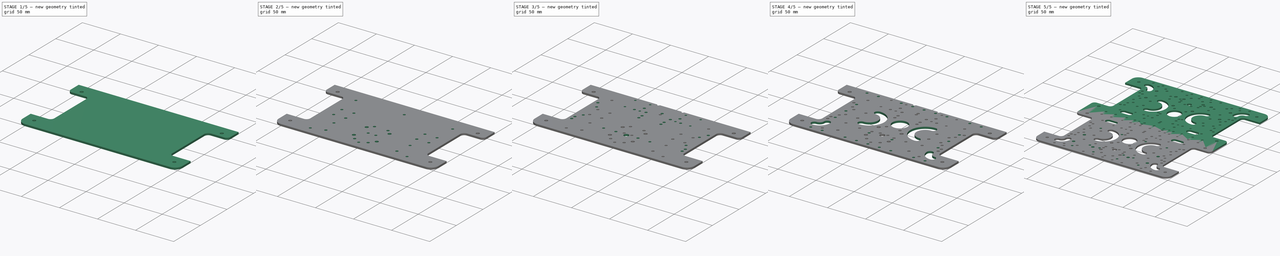
[diagram: build sequence overview — one tinted view per stage of 5, left to right]
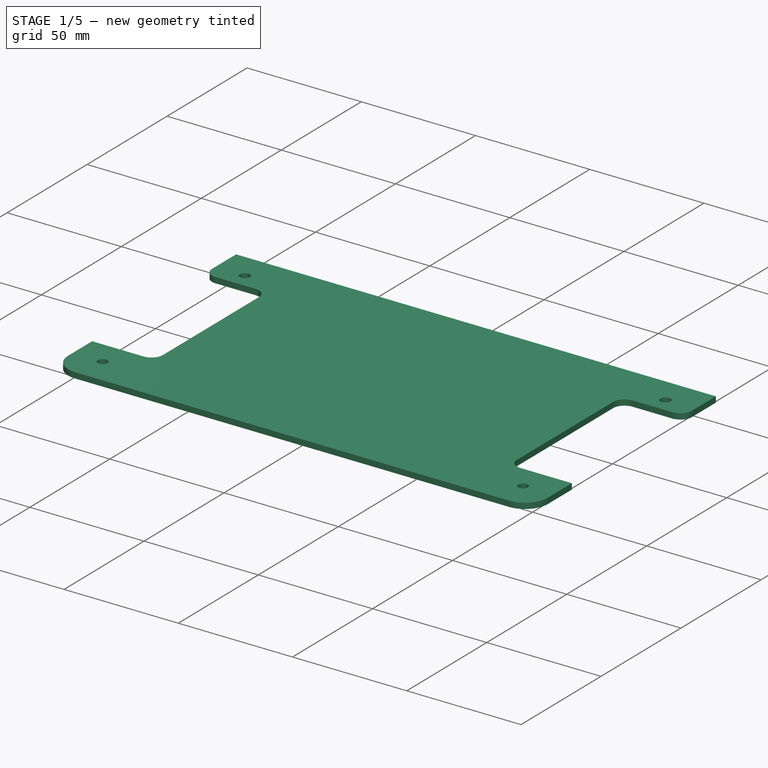
[diagram: stage 1 of 5 — iso view after this stage's code; geometry added in this stage tinted green]
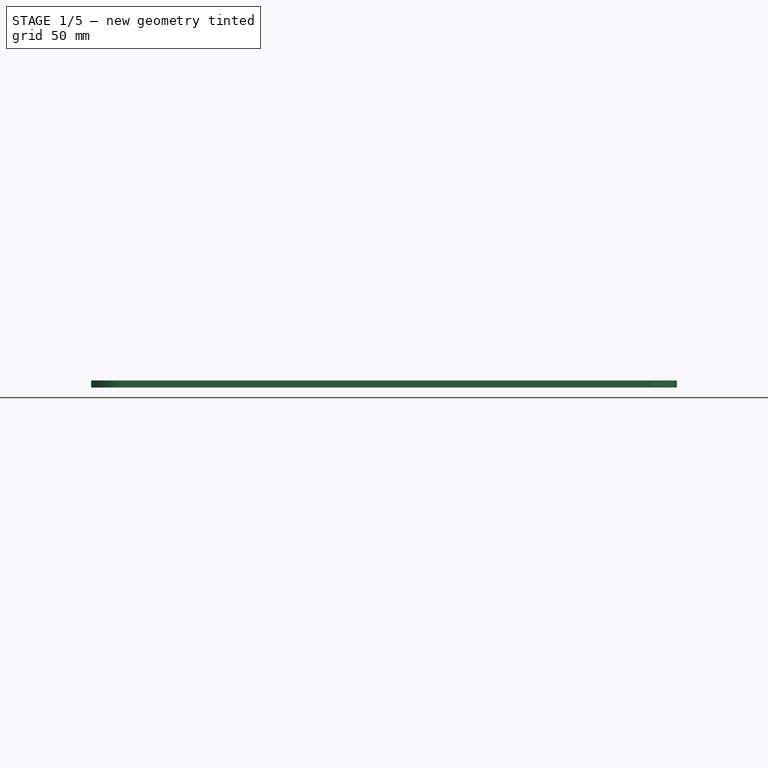
[diagram: stage 1 of 5 — front view after this stage's code; geometry added in this stage tinted green]
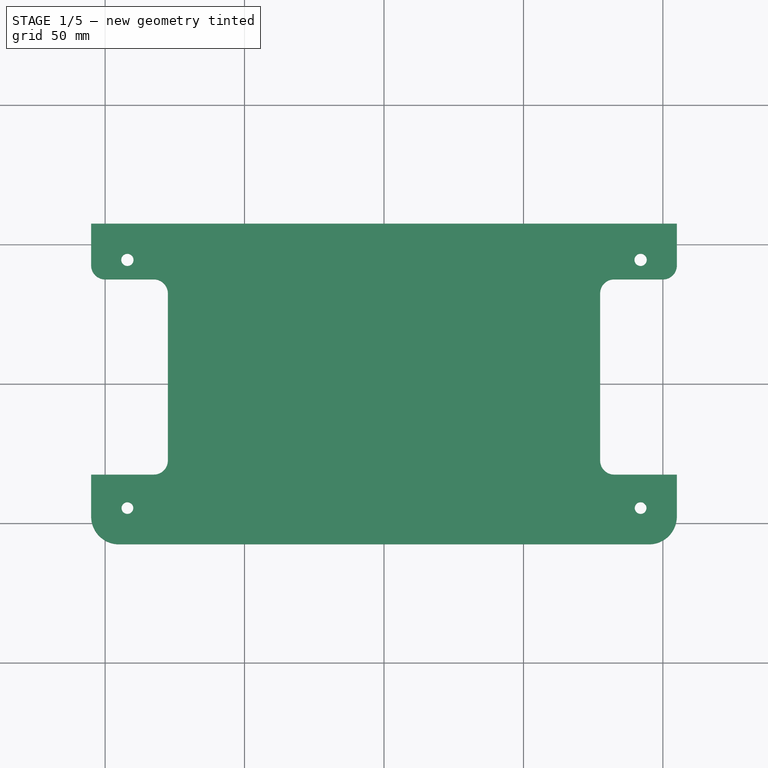
[diagram: stage 1 of 5 — top view after this stage's code; geometry added in this stage tinted green]
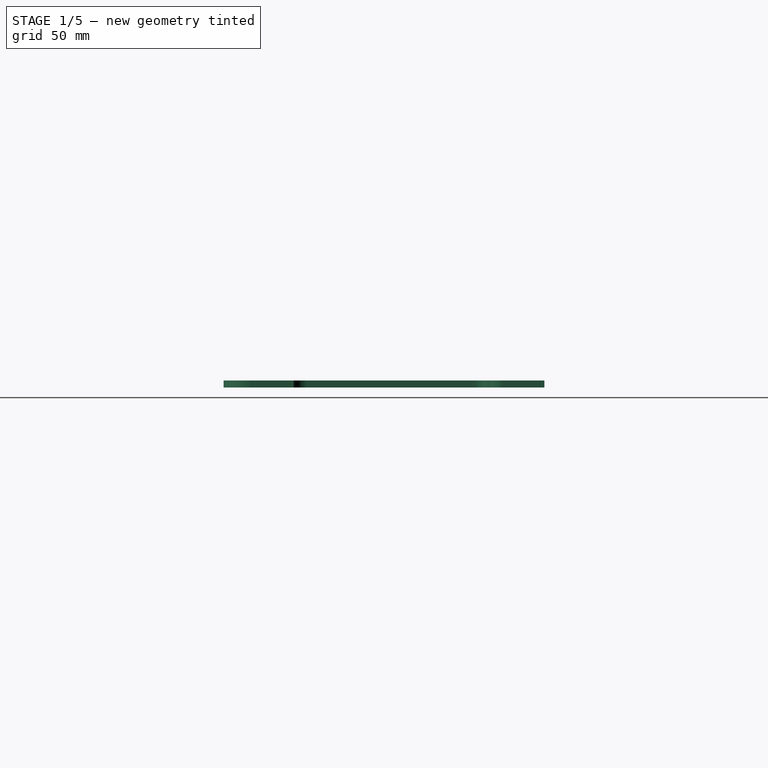
[diagram: stage 1 of 5 — right view after this stage's code; geometry added in this stage tinted green]
FCSTD DOCUMENT  (FreeCAD 1.0R39109 (Git))
Label: com_plate_template
License: All rights reserved
LicenseURL: http://en.wikipedia.org/wiki/All_rights_reserved
objects: Sketcher::SketchObject×22, PartDesign::Pocket×21, PartDesign::Fillet×2, PartDesign::Mirrored×2, PartDesign::Pad×1, PartDesign::Body×1
note: 121 computed .brp shape members not serialized (recipe doc carries the construction recipe); baked Part::Feature solids carry a one-line shape summary decoded from their .brp

FEATURE [Sketcher::SketchObject] Sketch
  ArcFitTolerance = 1e-06
  AttachmentSupport = -> [XY_Plane]
  FullyConstrained = true
  MakeInternals = false
  MapMode = 5
  sketch-geometry (5):
    g0: LineSegment StartX=-105 StartY=57.5 StartZ=0 EndX=-105 EndY=-57.5 EndZ=0
    g1: LineSegment StartX=-105 StartY=-57.5 StartZ=0 EndX=105 EndY=-57.5 EndZ=0
    g2: LineSegment StartX=105 StartY=-57.5 StartZ=0 EndX=105 EndY=57.5 EndZ=0
    g3: LineSegment StartX=105 StartY=57.5 StartZ=0 EndX=-105 EndY=57.5 EndZ=0
    g4: GeomPoint [constr] X=0 Y=0 Z=0
  constraints (12):
    c: Coincident(g0,g1)
    c: Coincident(g1,g2)
    c: Coincident(g2,g3)
    c: Coincident(g3,g0)
    c: Vertical(g0)
    c: Vertical(g2)
    c: Horizontal(g1)
    c: Horizontal(g3)
    c: Symmetric(g2,g0,g4)
    c: Coincident(g4,g-1)
    c: DistanceX(g1,g1) = 210
    c: DistanceY(g2,g2) = 115
FEATURE [PartDesign::Pad] Pad  label="BasePrintPad"
  Direction = (0,0,1)
  Length = 2.5
  Length2 = 10
  Profile = -> Sketch
  ReferenceAxis = -> Sketch [N_Axis]
  Refine = true
  Suppressed = false
  Type = 0
FEATURE [PartDesign::Fillet] Fillet  label="BasePrintFillet"
  Base = -> Pad [Edge2,Edge5]
  BaseFeature = -> Pad
  Radius = 10
  Refine = true
  SupportTransform = false
  Suppressed = false
  UseAllEdges = false
FEATURE [Sketcher::SketchObject] Sketch001
  ArcFitTolerance = 1e-06
  AttachmentSupport = -> [Fillet]
  ExternalGeometry = -> [Fillet]
  FullyConstrained = true
  MakeInternals = false
  MapMode = 5
  Placement = pos=(0,0,2.5) rot=(0,0,1;0rad)
  sketch-geometry (26):
    g0: LineSegment [constr] StartX=85 StartY=-57.5 StartZ=0 EndX=95 EndY=-57.5 EndZ=0
    g1: ArcOfCircle [constr] CenterX=95 CenterY=-47.5 CenterZ=0 NormalX=0 NormalY=0 NormalZ=1 AngleXU=0 Radius=10 StartAngle=4.71239 EndAngle=6.28319
    g2: LineSegment [constr] StartX=105 StartY=-47.5 StartZ=0 EndX=105 EndY=-37.5 EndZ=0
    g3: LineSegment [constr] StartX=105 StartY=-37.5 StartZ=0 EndX=99 EndY=-37.5 EndZ=0
    g4: LineSegment [constr] StartX=99 StartY=-37.5 StartZ=0 EndX=99 EndY=-47.5 EndZ=0
    g5: ArcOfCircle [constr] CenterX=95 CenterY=-47.5 CenterZ=0 NormalX=0 NormalY=0 NormalZ=1 AngleXU=0 Radius=4 StartAngle=4.71239 EndAngle=6.28319
    g6: LineSegment [constr] StartX=95 StartY=-51.5 StartZ=0 EndX=85 EndY=-51.5 EndZ=0
    g7: LineSegment [constr] StartX=85 StartY=-51.5 StartZ=0 EndX=85 EndY=-57.5 EndZ=0
    g8: Circle CenterX=92 CenterY=-44.5 CenterZ=0 NormalX=0 NormalY=0 NormalZ=1 AngleXU=0 Radius=2.1
    g9: LineSegment [constr] StartX=85 StartY=-51.5 StartZ=0 EndX=85 EndY=-41.5 EndZ=0
    g10: ArcOfCircle [constr] CenterX=89 CenterY=-41.5 CenterZ=0 NormalX=0 NormalY=0 NormalZ=1 AngleXU=0 Radius=4 StartAngle=1.5708 EndAngle=3.14159
    g11: LineSegment [constr] StartX=89 StartY=-37.5 StartZ=0 EndX=99 EndY=-37.5 EndZ=0
    g12: LineSegment [constr] StartX=-85 StartY=-57.5 StartZ=0 EndX=-95 EndY=-57.5 EndZ=0
    g13: ArcOfCircle [constr] CenterX=-95 CenterY=-47.5 CenterZ=0 NormalX=0 NormalY=0 NormalZ=1 AngleXU=0 Radius=10 StartAngle=3.14159 EndAngle=4.71239
    g14: LineSegment [constr] StartX=-105 StartY=-47.5 StartZ=0 EndX=-105 EndY=-37.5 EndZ=0
    g15: LineSegment [constr] StartX=-105 StartY=-37.5 StartZ=0 EndX=-99 EndY=-37.5 EndZ=0
    g16: LineSegment [constr] StartX=-99 StartY=-37.5 StartZ=0 EndX=-99 EndY=-47.5 EndZ=0
    g17: ArcOfCircle [constr] CenterX=-95 CenterY=-47.5 CenterZ=0 NormalX=0 NormalY=0 NormalZ=1 AngleXU=0 Radius=4 StartAngle=3.14159 EndAngle=4.71239
    g18: LineSegment [constr] StartX=-95 StartY=-51.5 StartZ=0 EndX=-85 EndY=-51.5 EndZ=0
    g19: LineSegment [constr] StartX=-85 StartY=-51.5 StartZ=0 EndX=-85 EndY=-57.5 EndZ=0
    g20: Circle CenterX=-92 CenterY=-44.5 CenterZ=0 NormalX=0 NormalY=0 NormalZ=1 AngleXU=0 Radius=2.1
    g21: LineSegment [constr] StartX=-85 StartY=-51.5 StartZ=0 EndX=-85 EndY=-41.5 EndZ=0
    g22: LineSegment [constr] StartX=-89 StartY=-37.5 StartZ=0 EndX=-99 EndY=-37.5 EndZ=0
    g23: ArcOfCircle [constr] CenterX=-89 CenterY=-41.5 CenterZ=0 NormalX=0 NormalY=0 NormalZ=1 AngleXU=0 Radius=4 StartAngle=-7.1e-15 EndAngle=1.5708
    g24: Circle CenterX=92 CenterY=44.5 CenterZ=0 NormalX=0 NormalY=0 NormalZ=1 AngleXU=0 Radius=2.2
    g25: Circle CenterX=-92 CenterY=44.5 CenterZ=0 NormalX=0 NormalY=0 NormalZ=1 AngleXU=0 Radius=2.2
  constraints (61):
    c: PointOnObject(g0,g-3)
    c: Tangent(g0,g1) = -1.5708
    c: Coincident(g1,g-5)
    c: Tangent(g1,g2) = -1.5708
    c: Coincident(g2,g3)
    c: Horizontal(g3)
    c: Coincident(g3,g4)
    c: Vertical(g4)
    c: Tangent(g4,g5) = 1.5708
    c: Horizontal(g6)
    c: Coincident(g6,g7)
    c: Coincident(g7,g0)
    c: Tangent(g5,g6) = 1.5708
    c: Vertical(g7)
    c: DistanceX(g3,g3) = 6
    c: Coincident(g-4,g0)
    c: DistanceX(g0,g0) = 10
    c: Equal(g0,g2)
    c: Coincident(g5,g1)
    c: Coincident(g6,g9)
    c: Vertical(g9)
    c: Tangent(g9,g10) = 1.5708
    c: Coincident(g11,g3)
    c: Tangent(g10,g11) = 1.5708
    c: Horizontal(g11)
    c: Equal(g10,g5)
    c: Symmetric(g1,g10,g8)
    c: Radius(g8) = 2.1
    c: Tangent(g12,g13) = 1.5708
    c: Tangent(g13,g14) = 1.5708
    c: Coincident(g14,g15)
    c: Horizontal(g15)
    c: Coincident(g15,g16)
    c: Vertical(g16)
    c: Tangent(g16,g17) = -1.5708
    c: Horizontal(g18)
    c: Coincident(g18,g19)
    c: Coincident(g19,g12)
    c: Tangent(g17,g18) = -1.5708
    c: Vertical(g19)
    c: Equal(g12,g14)
    c: Coincident(g17,g13)
    c: Coincident(g18,g21)
    c: Tangent(g21,g23) = -1.5708
    c: Coincident(g22,g15)
    c: Tangent(g23,g22) = -1.5708
    c: Equal(g23,g17)
    c: Symmetric(g13,g23,g20)
    c: Radius(g20) = 2.1
    c: Symmetric(g12,g0,g-2)
    c: Symmetric(g21,g9,g-2)
    c: Symmetric(g14,g2,g-2)
    c: Equal(g12,g0)
    c: Symmetric(g20,g8,g-2)
    c: Radius(g24) = 2.2
    c: Vertical(g24,g8)
    c: DistanceY(g24,g-6) = 13
    c: Radius(g25) = 2.2
    c: Symmetric(g25,g24,g-2)
    c: DistanceY(g0,g8) = 13
    c: DistanceX(g0,g1) = 10
FEATURE [PartDesign::Pocket] Pocket  label="Spacers10x80ScrewPocket"
  BaseFeature = -> Fillet
  Direction = (0,0,-1)
  Length = 5
  Length2 = 5
  Profile = -> Sketch001
  ReferenceAxis = -> Sketch001 [N_Axis]
  Refine = true
  Suppressed = false
  Type = 1
FEATURE [Sketcher::SketchObject] Sketch002
  ArcFitTolerance = 1e-06
  AttachmentSupport = -> [Pocket]
  ExternalGeometry = -> [Pocket]
  FullyConstrained = true
  MakeInternals = false
  MapMode = 5
  Placement = pos=(0,0,2.5) rot=(0,0,1;0rad)
  sketch-geometry (10):
    g0: LineSegment [constr] StartX=105 StartY=57.5 StartZ=0 EndX=105 EndY=-57.5 EndZ=0
    g1: GeomPoint X=105 Y=-1.2e-15 Z=0
    g2: LineSegment StartX=77.5 StartY=37.5 StartZ=0 EndX=77.5 EndY=-32.5 EndZ=0
    g3: LineSegment StartX=77.5 StartY=-32.5 StartZ=0 EndX=105 EndY=-32.5 EndZ=0
    g4: LineSegment StartX=105 StartY=-32.5 StartZ=0 EndX=105 EndY=37.5 EndZ=0
    g5: LineSegment StartX=105 StartY=37.5 StartZ=0 EndX=77.5 EndY=37.5 EndZ=0
    g6: LineSegment StartX=-77.5 StartY=37.5 StartZ=0 EndX=-77.5 EndY=-32.5 EndZ=0
    g7: LineSegment StartX=-77.5 StartY=-32.5 StartZ=0 EndX=-105 EndY=-32.5 EndZ=0
    g8: LineSegment StartX=-105 StartY=-32.5 StartZ=0 EndX=-105 EndY=37.5 EndZ=0
    g9: LineSegment StartX=-105 StartY=37.5 StartZ=0 EndX=-77.5 EndY=37.5 EndZ=0
  constraints (28):
    c: Coincident(g0,g-3)
    c: Vertical(g0)
    c: Horizontal(g-4,g0)
    c: Symmetric(g0,g0,g1)
    c: Coincident(g2,g3)
    c: Coincident(g3,g4)
    c: Coincident(g4,g5)
    c: Coincident(g5,g2)
    c: Vertical(g2)
    c: Vertical(g4)
    c: Horizontal(g3)
    c: Horizontal(g5)
    c: PointOnObject(g3,g0)
    c: DistanceY(g4,g4) = 70
    c: DistanceX(g5,g5) = 27.5
    c: Coincident(g6,g7)
    c: Coincident(g7,g8)
    c: Coincident(g8,g9)
    c: Coincident(g9,g6)
    c: Vertical(g6)
    c: Vertical(g8)
    c: Horizontal(g7)
    c: Horizontal(g9)
    c: Symmetric(g6,g2,g-2)
    c: Symmetric(g8,g4,g-2)
    c: DistanceY(g-4,g-5) = 13
    c: DistanceY(g0,g3) = 25
    c: DistanceY(g4,g0) = 20
FEATURE [PartDesign::Pocket] Pocket001  label="WheelPocket"
  BaseFeature = -> Pocket
  Direction = (0,0,-1)
  Length = 5
  Length2 = 5
  Profile = -> Sketch002
  ReferenceAxis = -> Sketch002 [N_Axis]
  Refine = true
  Suppressed = false
  Type = 1
FEATURE [PartDesign::Fillet] Fillet001  label="WheelFillet"
  Base = -> Pocket001 [Edge43,Edge42,Edge23,Edge50,Edge41,Edge2]
  BaseFeature = -> Pocket001
  Radius = 5
  Refine = true
  SupportTransform = false
  Suppressed = false
  UseAllEdges = false
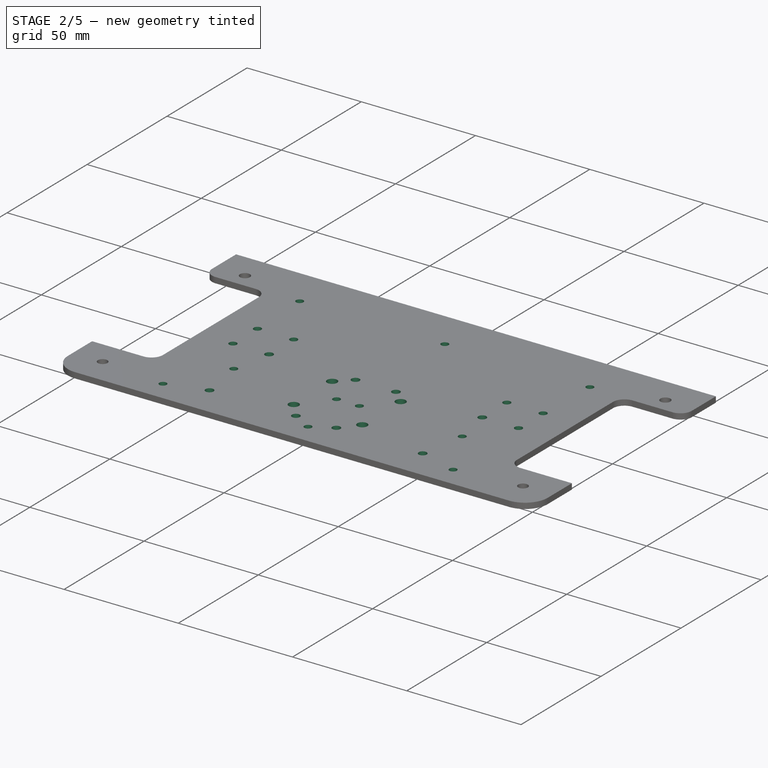
[diagram: stage 2 of 5 — iso view after this stage's code; geometry added in this stage tinted green]
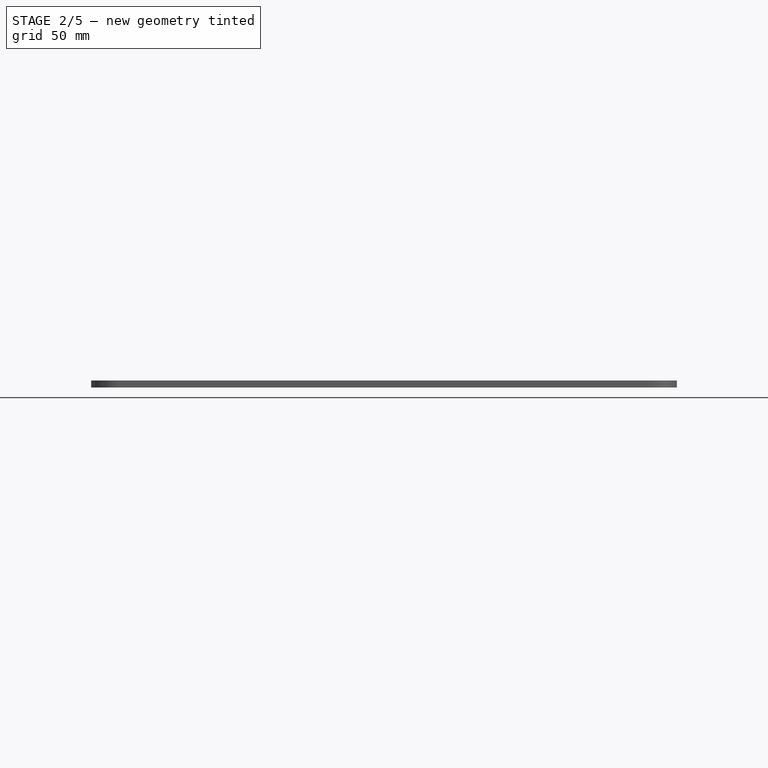
[diagram: stage 2 of 5 — front view after this stage's code; geometry added in this stage tinted green]
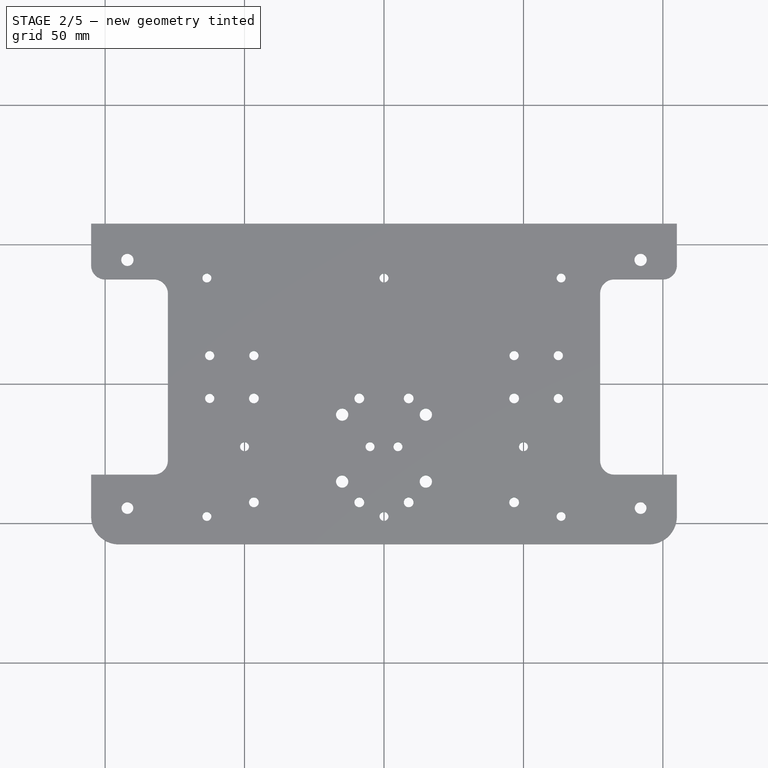
[diagram: stage 2 of 5 — top view after this stage's code; geometry added in this stage tinted green]
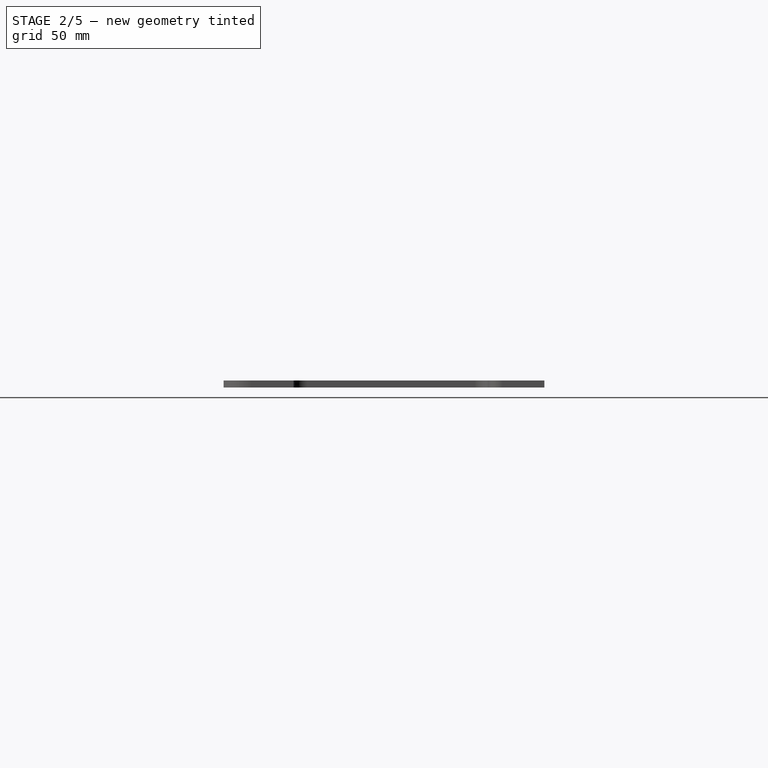
[diagram: stage 2 of 5 — right view after this stage's code; geometry added in this stage tinted green]
FEATURE [Sketcher::SketchObject] Sketch003
  ArcFitTolerance = 1e-06
  AttachmentSupport = -> [Fillet001]
  ExternalGeometry = -> [Fillet001]
  FullyConstrained = true
  MakeInternals = false
  MapMode = 5
  Placement = pos=(0,0,2.5) rot=(0,0,1;0rad)
  expr: Constraints[8] = 61.5 * 2 + 10
  expr: Constraints[9] = 71.5 + 20
  sketch-geometry (10):
    g0: LineSegment [constr] StartX=-66.5 StartY=41 StartZ=0 EndX=-66.5 EndY=-50.5 EndZ=0
    g1: LineSegment [constr] StartX=-66.5 StartY=-50.5 StartZ=0 EndX=66.5 EndY=-50.5 EndZ=0
    g2: LineSegment [constr] StartX=66.5 StartY=-50.5 StartZ=0 EndX=66.5 EndY=41 EndZ=0
    g3: LineSegment [constr] StartX=66.5 StartY=41 StartZ=0 EndX=-66.5 EndY=41 EndZ=0
    g4: Circle CenterX=0 CenterY=38 CenterZ=0 NormalX=0 NormalY=0 NormalZ=1 AngleXU=0 Radius=1.6
    g5: Circle CenterX=63.5 CenterY=38 CenterZ=0 NormalX=0 NormalY=0 NormalZ=1 AngleXU=0 Radius=1.6
    g6: Circle CenterX=63.5 CenterY=-47.5 CenterZ=0 NormalX=0 NormalY=0 NormalZ=1 AngleXU=0 Radius=1.6
    g7: Circle CenterX=0 CenterY=-47.5 CenterZ=0 NormalX=0 NormalY=0 NormalZ=1 AngleXU=0 Radius=1.6
    g8: Circle CenterX=-63.5 CenterY=38 CenterZ=0 NormalX=0 NormalY=0 NormalZ=1 AngleXU=0 Radius=1.6
    g9: Circle CenterX=-63.5 CenterY=-47.5 CenterZ=0 NormalX=0 NormalY=0 NormalZ=1 AngleXU=0 Radius=1.6
  constraints (27):
    c: Coincident(g0,g1)
    c: Coincident(g1,g2)
    c: Coincident(g2,g3)
    c: Coincident(g3,g0)
    c: Vertical(g0)
    c: Vertical(g2)
    c: Horizontal(g1)
    c: Symmetric(g2,g0,g-2)
    c: DistanceX(g3,g3) = 133
    c: DistanceY(g2,g2) = 91.5
    c: PointOnObject(g4,g-2)
    c: PointOnObject(g7,g-2)
    c: Horizontal(g7,g6)
    c: Vertical(g6,g5)
    c: Horizontal(g4,g5)
    c: Equal(g5,g4)
    c: Equal(g4,g7)
    c: Equal(g7,g6)
    c: Radius(g6) = 1.6
    c: DistanceX(g6,g1) = 3
    c: DistanceY(g1,g6) = 3
    c: DistanceY(g5,g2) = 3
    c: Horizontal(g6,g-4)
    c: Radius(g9) = 1.6
    c: Symmetric(g9,g6,g7)
    c: Symmetric(g8,g5,g4)
    c: Equal(g8,g9)
FEATURE [PartDesign::Pocket] Pocket002  label="BatteryScrewPocket"
  BaseFeature = -> Fillet001
  Direction = (0,0,-1)
  Length = 5
  Length2 = 5
  Profile = -> Sketch003
  ReferenceAxis = -> Sketch003 [N_Axis]
  Refine = true
  Suppressed = false
  Type = 1
FEATURE [Sketcher::SketchObject] Sketch004
  ArcFitTolerance = 1e-06
  AttachmentSupport = -> [Pocket002]
  ExternalGeometry = -> [Pocket002]
  FullyConstrained = true
  MakeInternals = false
  MapMode = 5
  Placement = pos=(0,0,2.5) rot=(0,0,1;0rad)
  sketch-geometry (19):
    g0: GeomPoint X=77.5 Y=2.5 Z=0
    g1: LineSegment [constr] StartX=46.651 StartY=10.1745 StartZ=0 EndX=46.651 EndY=-5.1745 EndZ=0
    g2: LineSegment [constr] StartX=46.651 StartY=-5.1745 StartZ=0 EndX=62.5 EndY=-5.1745 EndZ=0
    g3: LineSegment [constr] StartX=62.5 StartY=-5.1745 StartZ=0 EndX=62.5 EndY=10.1745 EndZ=0
    g4: LineSegment [constr] StartX=62.5 StartY=10.1745 StartZ=0 EndX=46.651 EndY=10.1745 EndZ=0
    g5: GeomPoint [constr] X=54.5755 Y=2.5 Z=0
    g6: Circle CenterX=46.651 CenterY=10.1745 CenterZ=0 NormalX=0 NormalY=0 NormalZ=1 AngleXU=0 Radius=1.65
    g7: Circle CenterX=46.651 CenterY=-5.1745 CenterZ=0 NormalX=0 NormalY=0 NormalZ=1 AngleXU=0 Radius=1.65
    g8: Circle CenterX=62.5 CenterY=-5.1745 CenterZ=0 NormalX=0 NormalY=0 NormalZ=1 AngleXU=0 Radius=1.65
    g9: Circle CenterX=62.5 CenterY=10.1745 CenterZ=0 NormalX=0 NormalY=0 NormalZ=1 AngleXU=0 Radius=1.65
    g10: LineSegment [constr] StartX=-46.651 StartY=10.1745 StartZ=0 EndX=-46.651 EndY=-5.1745 EndZ=0
    g11: LineSegment [constr] StartX=-46.651 StartY=-5.1745 StartZ=0 EndX=-62.5 EndY=-5.1745 EndZ=0
    g12: LineSegment [constr] StartX=-62.5 StartY=-5.1745 StartZ=0 EndX=-62.5 EndY=10.1745 EndZ=0
    g13: LineSegment [constr] StartX=-62.5 StartY=10.1745 StartZ=0 EndX=-46.651 EndY=10.1745 EndZ=0
    g14: GeomPoint [constr] X=-54.5755 Y=2.5 Z=0
    g15: Circle CenterX=-46.651 CenterY=10.1745 CenterZ=0 NormalX=0 NormalY=0 NormalZ=1 AngleXU=0 Radius=1.65
    g16: Circle CenterX=-46.651 CenterY=-5.1745 CenterZ=0 NormalX=0 NormalY=0 NormalZ=1 AngleXU=0 Radius=1.65
    g17: Circle CenterX=-62.5 CenterY=-5.1745 CenterZ=0 NormalX=0 NormalY=0 NormalZ=1 AngleXU=0 Radius=1.65
    g18: Circle CenterX=-62.5 CenterY=10.1745 CenterZ=0 NormalX=0 NormalY=0 NormalZ=1 AngleXU=0 Radius=1.65
  constraints (41):
    c: Symmetric(g-3,g-3,g0)
    c: Coincident(g1,g2)
    c: Coincident(g2,g3)
    c: Coincident(g3,g4)
    c: Coincident(g4,g1)
    c: Vertical(g1)
    c: Vertical(g3)
    c: Horizontal(g2)
    c: Horizontal(g4)
    c: Symmetric(g3,g1,g5)
    c: Horizontal(g5,g0)
    c: Coincident(g6,g1)
    c: Coincident(g7,g1)
    c: Coincident(g8,g2)
    c: Coincident(g9,g3)
    c: Radius(g6) = 1.65
    c: Equal(g6,g9)
    c: Equal(g9,g7)
    c: Equal(g7,g8)
    c: DistanceY(g2,g3) = 15.349
    c: DistanceX(g2,g0) = 15
    c: Coincident(g10,g11)
    c: Coincident(g11,g12)
    c: Coincident(g12,g13)
    c: Coincident(g13,g10)
    c: Vertical(g10)
    c: Vertical(g12)
    c: Horizontal(g11)
    c: Horizontal(g13)
    c: Symmetric(g12,g10,g14)
    c: Coincident(g15,g10)
    c: Coincident(g16,g10)
    c: Coincident(g17,g11)
    c: Coincident(g18,g12)
    c: Radius(g15) = 1.65
    c: Equal(g15,g18)
    c: Equal(g18,g16)
    c: Equal(g16,g17)
    c: Symmetric(g10,g1,g-2)
    c: Symmetric(g2,g11,g-2)
    c: DistanceX(g4,g4) = 15.849
FEATURE [PartDesign::Pocket] Pocket003  label="MotorSupportScrewPocket"
  BaseFeature = -> Pocket002
  Direction = (0,0,-1)
  Length = 5
  Length2 = 5
  Profile = -> Sketch004
  ReferenceAxis = -> Sketch004 [N_Axis]
  Refine = true
  Suppressed = false
  Type = 1
FEATURE [Sketcher::SketchObject] Sketch005
  ArcFitTolerance = 1e-06
  AttachmentSupport = -> [Pocket003]
  ExternalGeometry = -> [Pocket003]
  FullyConstrained = true
  MakeInternals = false
  MapMode = 5
  Placement = pos=(0,0,2.5) rot=(0,0,1;0rad)
  sketch-geometry (16):
    g0: LineSegment [constr] StartX=-46.651 StartY=-5.1745 StartZ=0 EndX=-46.651 EndY=-42.4445 EndZ=0
    g1: LineSegment [constr] StartX=-46.651 StartY=-42.4445 StartZ=0 EndX=-8.851 EndY=-42.4445 EndZ=0
    g2: LineSegment [constr] StartX=-8.851 StartY=-42.4445 StartZ=0 EndX=-8.851 EndY=-5.1745 EndZ=0
    g3: LineSegment [constr] StartX=-8.851 StartY=-5.1745 StartZ=0 EndX=-46.651 EndY=-5.1745 EndZ=0
    g4: Circle CenterX=-46.651 CenterY=-5.1745 CenterZ=0 NormalX=0 NormalY=0 NormalZ=1 AngleXU=0 Radius=1.75
    g5: Circle CenterX=-8.851 CenterY=-5.1745 CenterZ=0 NormalX=0 NormalY=0 NormalZ=1 AngleXU=0 Radius=1.75
    g6: Circle CenterX=-46.651 CenterY=-42.4445 CenterZ=0 NormalX=0 NormalY=0 NormalZ=1 AngleXU=0 Radius=1.75
    g7: Circle CenterX=-8.851 CenterY=-42.4445 CenterZ=0 NormalX=0 NormalY=0 NormalZ=1 AngleXU=0 Radius=1.75
    g8: LineSegment [constr] StartX=46.651 StartY=-5.1745 StartZ=0 EndX=46.651 EndY=-42.4445 EndZ=0
    g9: LineSegment [constr] StartX=46.651 StartY=-42.4445 StartZ=0 EndX=8.851 EndY=-42.4445 EndZ=0
    g10: LineSegment [constr] StartX=8.851 StartY=-42.4445 StartZ=0 EndX=8.851 EndY=-5.1745 EndZ=0
    g11: LineSegment [constr] StartX=8.851 StartY=-5.1745 StartZ=0 EndX=46.651 EndY=-5.1745 EndZ=0
    g12: Circle CenterX=46.651 CenterY=-5.1745 CenterZ=0 NormalX=0 NormalY=0 NormalZ=1 AngleXU=0 Radius=1.75
    g13: Circle CenterX=8.851 CenterY=-5.1745 CenterZ=0 NormalX=0 NormalY=0 NormalZ=1 AngleXU=0 Radius=1.75
    g14: Circle CenterX=46.651 CenterY=-42.4445 CenterZ=0 NormalX=0 NormalY=0 NormalZ=1 AngleXU=0 Radius=1.75
    g15: Circle CenterX=8.851 CenterY=-42.4445 CenterZ=0 NormalX=0 NormalY=0 NormalZ=1 AngleXU=0 Radius=1.75
  constraints (37):
    c: Coincident(g0,g1)
    c: Coincident(g1,g2)
    c: Coincident(g2,g3)
    c: Coincident(g3,g0)
    c: Vertical(g0)
    c: Vertical(g2)
    c: Horizontal(g1)
    c: Horizontal(g3)
    c: Coincident(g4,g0)
    c: Coincident(g5,g2)
    c: Coincident(g6,g0)
    c: Coincident(g7,g1)
    c: Equal(g7,g6)
    c: Equal(g6,g4)
    c: Equal(g4,g5)
    c: Radius(g5) = 1.75
    c: DistanceX(g3,g3) = 37.8
    c: DistanceY(g2,g2) = 37.27
    c: Coincident(g0,g-3)
    c: Coincident(g8,g9)
    c: Coincident(g9,g10)
    c: Coincident(g10,g11)
    c: Coincident(g11,g8)
    c: Vertical(g8)
    c: Vertical(g10)
    c: Horizontal(g9)
    c: Horizontal(g11)
    c: Coincident(g12,g8)
    c: Coincident(g13,g10)
    c: Coincident(g14,g8)
    c: Coincident(g15,g9)
    c: Equal(g15,g14)
    c: Equal(g14,g12)
    c: Equal(g12,g13)
    c: Radius(g13) = 1.75
    c: Symmetric(g1,g9,g-2)
    c: Symmetric(g8,g0,g-2)
FEATURE [PartDesign::Pocket] Pocket004  label="L298nScrewPocket"
  BaseFeature = -> Pocket003
  Direction = (0,0,-1)
  Length = 5
  Length2 = 5
  Profile = -> Sketch005
  ReferenceAxis = -> Sketch005 [N_Axis]
  Refine = true
  Suppressed = false
  Type = 1
FEATURE [Sketcher::SketchObject] Sketch006
  ArcFitTolerance = 1e-06
  AttachmentSupport = -> [Pocket004]
  ExternalGeometry = -> [Pocket004]
  FullyConstrained = true
  MakeInternals = false
  MapMode = 5
  Placement = pos=(0,0,2.5) rot=(0,0,1;0rad)
  sketch-geometry (4):
    g0: Circle CenterX=5 CenterY=-22.5 CenterZ=0 NormalX=0 NormalY=0 NormalZ=1 AngleXU=0 Radius=1.6
    g1: Circle CenterX=50 CenterY=-22.5 CenterZ=0 NormalX=0 NormalY=0 NormalZ=1 AngleXU=0 Radius=1.6
    g2: Circle CenterX=-5 CenterY=-22.5 CenterZ=0 NormalX=0 NormalY=0 NormalZ=1 AngleXU=0 Radius=1.6
    g3: Circle CenterX=-50 CenterY=-22.5 CenterZ=0 NormalX=0 NormalY=0 NormalZ=1 AngleXU=0 Radius=1.6
  constraints (10):
    c: Horizontal(g0,g1)
    c: DistanceX(g0,g1) = 45
    c: Radius(g1) = 1.6
    c: Equal(g1,g0)
    c: DistanceX(g-1,g0) = 5
    c: Radius(g3) = 1.6
    c: Equal(g3,g2)
    c: Symmetric(g0,g2,g-2)
    c: Symmetric(g3,g1,g-2)
    c: DistanceY(g-4,g1) = 10
FEATURE [PartDesign::Pocket] Pocket005  label="RegulatorSupportScrewPocket"
  BaseFeature = -> Pocket004
  Direction = (0,0,-1)
  Length = 5
  Length2 = 5
  Profile = -> Sketch006
  ReferenceAxis = -> Sketch006 [N_Axis]
  Refine = true
  Suppressed = false
  Type = 1
FEATURE [Sketcher::SketchObject] Sketch007
  ArcFitTolerance = 1e-06
  AttachmentSupport = -> [Pocket005]
  FullyConstrained = true
  MakeInternals = false
  MapMode = 5
  Placement = pos=(0,0,2.5) rot=(0,0,1;0rad)
  sketch-geometry (4):
    g0: Circle CenterX=-15 CenterY=-11 CenterZ=0 NormalX=0 NormalY=0 NormalZ=1 AngleXU=0 Radius=2.2
    g1: Circle CenterX=15 CenterY=-11 CenterZ=0 NormalX=0 NormalY=0 NormalZ=1 AngleXU=0 Radius=2.2
    g2: Circle CenterX=-15 CenterY=-35 CenterZ=0 NormalX=0 NormalY=0 NormalZ=1 AngleXU=0 Radius=2.2
    g3: Circle CenterX=15 CenterY=-35 CenterZ=0 NormalX=0 NormalY=0 NormalZ=1 AngleXU=0 Radius=2.2
  constraints (10):
    c: DistanceY(g3,g1) = 24
    c: DistanceX(g0,g1) = 30
    c: Symmetric(g0,g1,g-2)
    c: Symmetric(g2,g3,g-2)
    c: Vertical(g2,g0)
    c: Equal(g1,g3)
    c: Equal(g3,g2)
    c: Equal(g2,g0)
    c: Radius(g0) = 2.2
    c: DistanceY(g1,g-1) = 11
FEATURE [PartDesign::Pocket] Pocket006  label="CasterWheelScrewPocket"
  BaseFeature = -> Pocket005
  Direction = (0,0,-1)
  Length = 5
  Length2 = 5
  Profile = -> Sketch007
  ReferenceAxis = -> Sketch007 [N_Axis]
  Refine = true
  Suppressed = false
  Type = 1
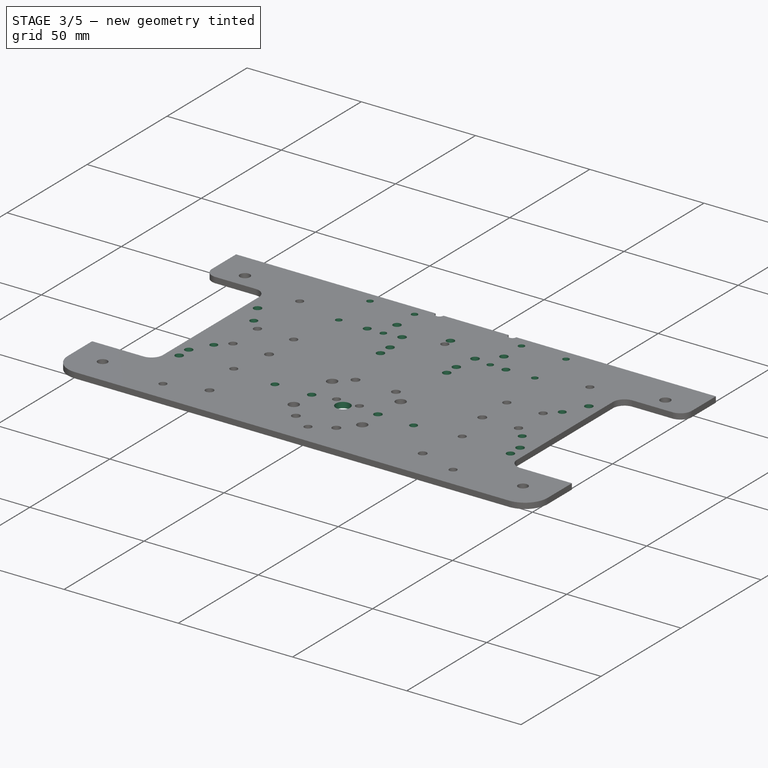
[diagram: stage 3 of 5 — iso view after this stage's code; geometry added in this stage tinted green]
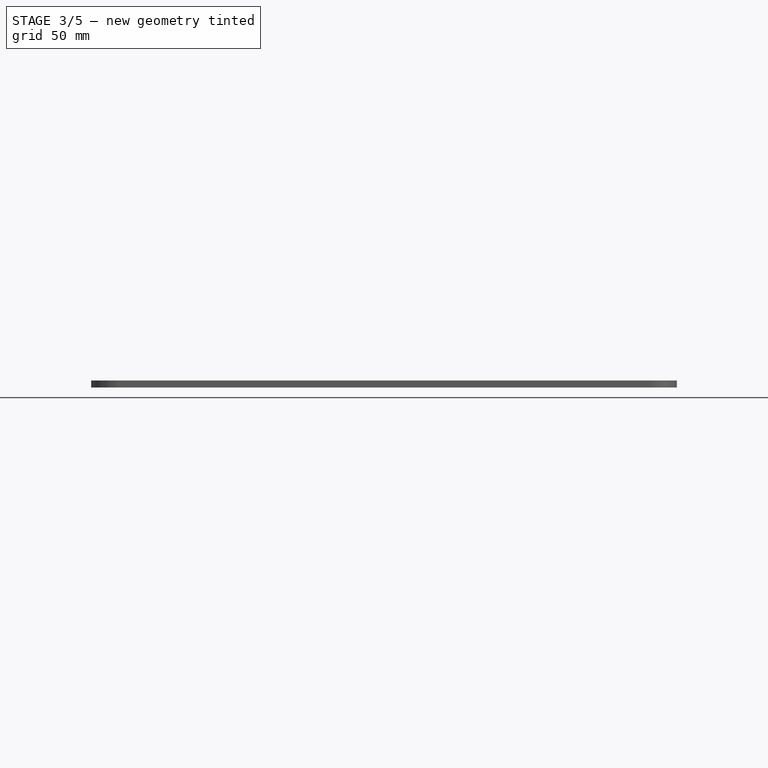
[diagram: stage 3 of 5 — front view after this stage's code; geometry added in this stage tinted green]
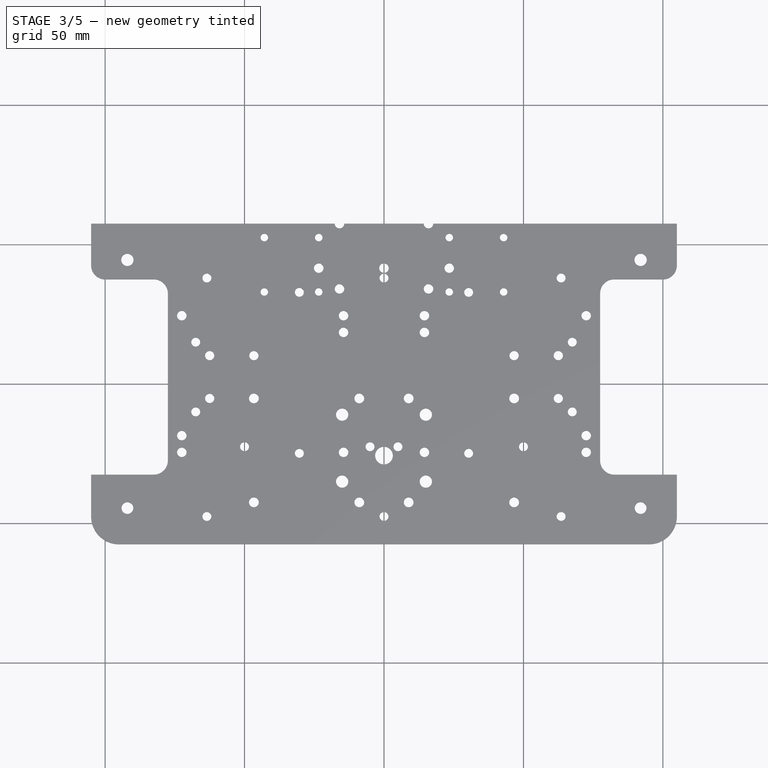
[diagram: stage 3 of 5 — top view after this stage's code; geometry added in this stage tinted green]
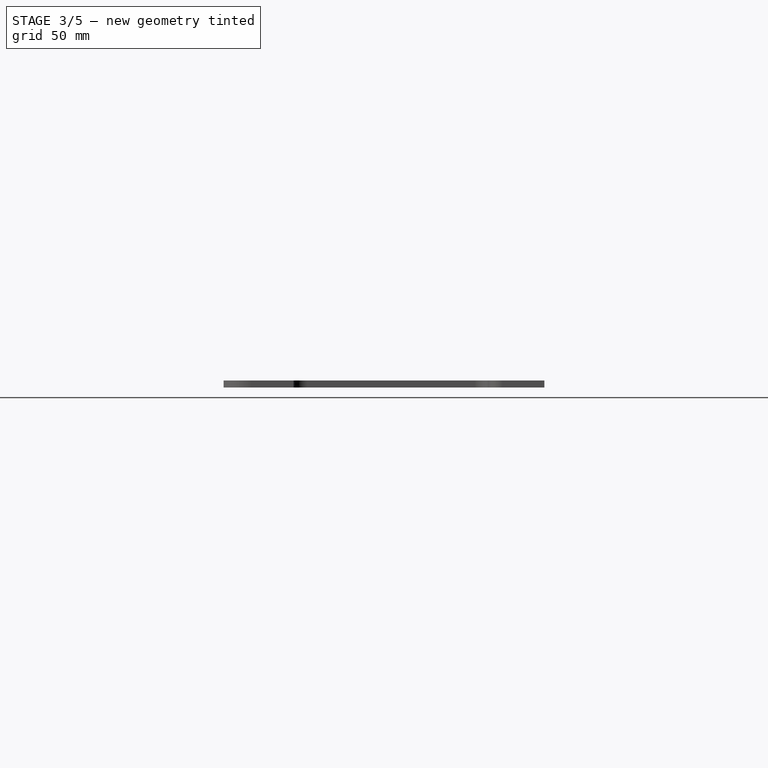
[diagram: stage 3 of 5 — right view after this stage's code; geometry added in this stage tinted green]
FEATURE [Sketcher::SketchObject] Sketch008
  ArcFitTolerance = 1e-06
  AttachmentSupport = -> [Pocket006]
  ExternalGeometry = -> [Pocket006]
  FullyConstrained = true
  MakeInternals = false
  MapMode = 5
  Placement = pos=(0,0,2.5) rot=(0,0,1;0rad)
  sketch-geometry (4):
    g0: Circle CenterX=0 CenterY=-25.675 CenterZ=0 NormalX=0 NormalY=0 NormalZ=1 AngleXU=0 Radius=3.175
    g1: LineSegment [constr] StartX=0 StartY=-42.5 StartZ=0 EndX=3.175 EndY=-42.5 EndZ=0
    g2: GeomPoint [constr] X=3.175 Y=-25.675 Z=0
    g3: GeomPoint [constr] X=0 Y=-22.5 Z=0
  constraints (11):
    c: PointOnObject(g0,g-2)
    c: Radius(g0) = 3.175
    c: Horizontal(g1)
    c: PointOnObject(g2,g0)
    c: Horizontal(g2,g0)
    c: Vertical(g2,g1)
    c: PointOnObject(g3,g0)
    c: PointOnObject(g3,g-2)
    c: DistanceY(g1,g3) = 20
    c: DistanceY(g-3,g1) = 15
    c: PointOnObject(g1,g-2)
FEATURE [PartDesign::Pocket] Pocket007  label="AstraSScrewPocket"
  BaseFeature = -> Pocket006
  Direction = (0,0,-1)
  Length = 5
  Length2 = 5
  Profile = -> Sketch008
  ReferenceAxis = -> Sketch008 [N_Axis]
  Refine = true
  Suppressed = false
  Type = 1
FEATURE [Sketcher::SketchObject] Sketch009
  ArcFitTolerance = 1e-06
  AttachmentSupport = -> [Pocket007]
  ExternalGeometry = -> [Pocket007]
  FullyConstrained = true
  MakeInternals = false
  MapMode = 5
  Placement = pos=(0,0,2.5) rot=(0,0,1;0rad)
  sketch-geometry (16):
    g0: Circle CenterX=0 CenterY=41.54 CenterZ=0 NormalX=0 NormalY=0 NormalZ=1 AngleXU=0 Radius=1.7
    g1: Circle [constr] CenterX=23.4 CenterY=73.46 CenterZ=0 NormalX=0 NormalY=0 NormalZ=1 AngleXU=0 Radius=1.7
    g2: Circle [constr] CenterX=-23.4 CenterY=73.46 CenterZ=0 NormalX=0 NormalY=0 NormalZ=1 AngleXU=0 Radius=1.7
    g3: LineSegment [constr] StartX=0 StartY=41.54 StartZ=0 EndX=0 EndY=73.46 EndZ=0
    g4: GeomPoint X=0 Y=57.5 Z=0
    g5: Circle CenterX=23.4 CenterY=41.54 CenterZ=0 NormalX=0 NormalY=0 NormalZ=1 AngleXU=0 Radius=1.7
    g6: Circle CenterX=-23.4 CenterY=41.54 CenterZ=0 NormalX=0 NormalY=0 NormalZ=1 AngleXU=0 Radius=1.7
    g7: Circle [constr] CenterX=0 CenterY=73.46 CenterZ=0 NormalX=0 NormalY=0 NormalZ=1 AngleXU=0 Radius=1.7
    g8: Circle CenterX=-15.96 CenterY=57.5 CenterZ=0 NormalX=0 NormalY=0 NormalZ=1 AngleXU=0 Radius=1.7
    g9: Circle CenterX=15.96 CenterY=57.5 CenterZ=0 NormalX=0 NormalY=0 NormalZ=1 AngleXU=0 Radius=1.7
    g10: Circle CenterX=-15.96 CenterY=34.1 CenterZ=0 NormalX=0 NormalY=0 NormalZ=1 AngleXU=0 Radius=1.7
    g11: Circle CenterX=15.96 CenterY=34.1 CenterZ=0 NormalX=0 NormalY=0 NormalZ=1 AngleXU=0 Radius=1.7
    g12: LineSegment [constr] StartX=-23.4 StartY=73.46 StartZ=0 EndX=23.4 EndY=73.46 EndZ=0
    g13: LineSegment [constr] StartX=-15.96 StartY=34.1 StartZ=0 EndX=-15.96 EndY=80.9 EndZ=0
    g14: LineSegment [constr] StartX=-15.96 StartY=34.1 StartZ=0 EndX=15.96 EndY=34.1 EndZ=0
    g15: LineSegment [constr] StartX=23.4 StartY=73.46 StartZ=0 EndX=23.4 EndY=41.54 EndZ=0
  constraints (40):
    c: PointOnObject(g0,g-2)
    c: DistanceX(g2,g1) = 46.8
    c: Symmetric(g1,g2,g-2)
    c: Equal(g1,g0)
    c: Equal(g0,g2)
    c: Radius(g2) = 1.7
    c: DistanceY(g0,g1) = 31.92
    c: Coincident(g3,g0)
    c: PointOnObject(g3,g-2)
    c: Horizontal(g3,g1)
    c: Symmetric(g3,g3,g4)
    c: PointOnObject(g4,g-3)
    c: Equal(g5,g7)
    c: Equal(g7,g6)
    c: Radius(g6) = 1.7
    c: Symmetric(g0,g7,g4)
    c: Symmetric(g6,g2,g-3)
    c: Symmetric(g5,g1,g-3)
    c: PointOnObject(g8,g-3)
    c: Coincident(g12,g2)
    c: Coincident(g12,g1)
    c: Coincident(g13,g10)
    c: Equal(g13,g12)
    c: Symmetric(g13,g10,g-3)
    c: Coincident(g14,g10)
    c: Coincident(g14,g11)
    c: Symmetric(g11,g10,g-2)
    c: Coincident(g15,g1)
    c: Coincident(g15,g5)
    c: Equal(g15,g14)
    c: PointOnObject(g8,g13)
    c: Equal(g9,g8)
    c: Equal(g9,g11)
    c: Equal(g11,g10)
    c: Equal(g6,g10)
    c: Vertical(g11,g9)
    c: Horizontal(g9,g8)
    c: DistanceX(g10,g11) = 31.92
    c: DistanceY(g11,g9) = 23.4
    c: DistanceY(g4) = 57.5
FEATURE [PartDesign::Pocket] Pocket008  label="LIDARScrewPockets"
  BaseFeature = -> Pocket007
  Direction = (0,0,-1)
  Length = 5
  Length2 = 5
  Profile = -> Sketch009
  ReferenceAxis = -> Sketch009 [N_Axis]
  Refine = true
  Suppressed = false
  Type = 1
FEATURE [Sketcher::SketchObject] Sketch010
  ArcFitTolerance = 1e-06
  AttachmentSupport = -> [Pocket008]
  ExternalGeometry = -> [Pocket008]
  FullyConstrained = true
  MakeInternals = false
  MapMode = 5
  Placement = pos=(0,0,2.5) rot=(0,0,1;0rad)
  sketch-geometry (12):
    g0: Circle CenterX=-72.5 CenterY=24.5 CenterZ=0 NormalX=0 NormalY=0 NormalZ=1 AngleXU=0 Radius=1.7
    g1: Circle CenterX=-14.5 CenterY=24.5 CenterZ=0 NormalX=0 NormalY=0 NormalZ=1 AngleXU=0 Radius=1.7
    g2: Circle CenterX=-72.5 CenterY=-24.5 CenterZ=0 NormalX=0 NormalY=0 NormalZ=1 AngleXU=0 Radius=1.7
    g3: Circle CenterX=-14.5 CenterY=-24.5 CenterZ=0 NormalX=0 NormalY=0 NormalZ=1 AngleXU=0 Radius=1.7
    g4: Circle CenterX=-72.5 CenterY=-18.5 CenterZ=0 NormalX=0 NormalY=0 NormalZ=1 AngleXU=0 Radius=1.7
    g5: Circle CenterX=-14.5 CenterY=18.5 CenterZ=0 NormalX=0 NormalY=0 NormalZ=1 AngleXU=0 Radius=1.7
    g6: Circle CenterX=72.5 CenterY=24.5 CenterZ=0 NormalX=0 NormalY=0 NormalZ=1 AngleXU=0 Radius=1.7
    g7: Circle CenterX=14.5 CenterY=24.5 CenterZ=0 NormalX=0 NormalY=0 NormalZ=1 AngleXU=0 Radius=1.7
    g8: Circle CenterX=72.5 CenterY=-24.5 CenterZ=0 NormalX=0 NormalY=0 NormalZ=1 AngleXU=0 Radius=1.7
    g9: Circle CenterX=14.5 CenterY=-24.5 CenterZ=0 NormalX=0 NormalY=0 NormalZ=1 AngleXU=0 Radius=1.7
    g10: Circle CenterX=72.5 CenterY=-18.5 CenterZ=0 NormalX=0 NormalY=0 NormalZ=1 AngleXU=0 Radius=1.7
    g11: Circle CenterX=14.5 CenterY=18.5 CenterZ=0 NormalX=0 NormalY=0 NormalZ=1 AngleXU=0 Radius=1.7
  constraints (29):
    c: Horizontal(g3,g2)
    c: Horizontal(g0,g1)
    c: Vertical(g3,g1)
    c: Equal(g3,g1)
    c: Equal(g1,g0)
    c: Equal(g0,g2)
    c: Radius(g2) = 1.7
    c: DistanceX(g0,g1) = 58
    c: DistanceY(g2,g0) = 49
    c: Vertical(g5,g1)
    c: DistanceY(g5,g1) = 6
    c: DistanceY(g2,g4) = 6
    c: Equal(g2,g4)
    c: Vertical(g4,g2)
    c: Equal(g5,g1)
    c: DistanceX(g-3,g2) = 5
    c: Symmetric(g0,g2,g-1)
    c: Equal(g9,g7)
    c: Equal(g7,g6)
    c: Equal(g6,g8)
    c: Radius(g8) = 1.7
    c: Equal(g8,g10)
    c: Equal(g11,g7)
    c: Symmetric(g9,g3,g-2)
    c: Symmetric(g8,g2,g-2)
    c: Symmetric(g6,g0,g-2)
    c: Symmetric(g7,g1,g-2)
    c: Symmetric(g11,g5,g-2)
    c: Symmetric(g10,g4,g-2)
FEATURE [PartDesign::Pocket] Pocket009  label="RP5ScrewPockets"
  BaseFeature = -> Pocket008
  Direction = (0,0,-1)
  Length = 5
  Length2 = 5
  Profile = -> Sketch010
  ReferenceAxis = -> Sketch010 [N_Axis]
  Refine = true
  Suppressed = false
  Type = 1
FEATURE [Sketcher::SketchObject] Sketch011
  ArcFitTolerance = 1e-06
  AttachmentSupport = -> [Pocket009]
  ExternalGeometry = -> [Pocket009]
  FullyConstrained = true
  MakeInternals = false
  MapMode = 5
  Placement = pos=(0,0,2.5) rot=(0,0,1;0rad)
  sketch-geometry (8):
    g0: Circle CenterX=-42.9 CenterY=52.5 CenterZ=0 NormalX=0 NormalY=0 NormalZ=1 AngleXU=0 Radius=1.35
    g1: Circle CenterX=-23.4 CenterY=52.5 CenterZ=0 NormalX=0 NormalY=0 NormalZ=1 AngleXU=0 Radius=1.35
    g2: Circle CenterX=-42.9 CenterY=33 CenterZ=0 NormalX=0 NormalY=0 NormalZ=1 AngleXU=0 Radius=1.35
    g3: Circle CenterX=-23.4 CenterY=33 CenterZ=0 NormalX=0 NormalY=0 NormalZ=1 AngleXU=0 Radius=1.35
    g4: Circle CenterX=42.9 CenterY=52.5 CenterZ=0 NormalX=0 NormalY=0 NormalZ=1 AngleXU=0 Radius=1.35
    g5: Circle CenterX=23.4 CenterY=52.5 CenterZ=0 NormalX=0 NormalY=0 NormalZ=1 AngleXU=0 Radius=1.35
    g6: Circle CenterX=42.9 CenterY=33 CenterZ=0 NormalX=0 NormalY=0 NormalZ=1 AngleXU=0 Radius=1.35
    g7: Circle CenterX=23.4 CenterY=33 CenterZ=0 NormalX=0 NormalY=0 NormalZ=1 AngleXU=0 Radius=1.35
  constraints (20):
    c: Horizontal(g0,g1)
    c: Horizontal(g3,g2)
    c: Vertical(g2,g0)
    c: Vertical(g1,g3)
    c: Equal(g0,g1)
    c: Equal(g1,g3)
    c: Equal(g3,g2)
    c: Radius(g2) = 1.35
    c: DistanceX(g0,g1) = 19.5
    c: DistanceY(g2,g0) = 19.5
    c: Vertical(g-5,g1)
    c: Equal(g4,g5)
    c: Equal(g5,g7)
    c: Equal(g7,g6)
    c: Radius(g6) = 1.35
    c: Symmetric(g1,g5,g-2)
    c: Symmetric(g4,g0,g-2)
    c: Symmetric(g2,g6,g-2)
    c: Symmetric(g7,g3,g-2)
    c: DistanceY(g0,g-6) = 5
FEATURE [PartDesign::Pocket] Pocket010  label="TouchScrewPocket"
  BaseFeature = -> Pocket009
  Direction = (0,0,-1)
  Length = 5
  Length2 = 5
  Profile = -> Sketch011
  ReferenceAxis = -> Sketch011 [N_Axis]
  Refine = true
  Suppressed = false
  Type = 1
FEATURE [Sketcher::SketchObject] Sketch012
  ArcFitTolerance = 1e-06
  AttachmentSupport = -> [Pocket010]
  ExternalGeometry = -> [Pocket010]
  FullyConstrained = true
  MakeInternals = false
  MapMode = 5
  Placement = pos=(0,0,2.5) rot=(0,0,1;0rad)
  sketch-geometry (8):
    g0: Circle CenterX=67.5 CenterY=15 CenterZ=0 NormalX=0 NormalY=0 NormalZ=1 AngleXU=0 Radius=1.6
    g1: Circle CenterX=67.5 CenterY=-10 CenterZ=0 NormalX=0 NormalY=0 NormalZ=1 AngleXU=0 Radius=1.6
    g2: GeomPoint X=77.5 Y=2.5 Z=0
    g3: LineSegment [constr] StartX=77.5 StartY=2.5 StartZ=0 EndX=67.5 EndY=2.5 EndZ=0
    g4: Circle CenterX=-67.5 CenterY=15 CenterZ=0 NormalX=0 NormalY=0 NormalZ=1 AngleXU=0 Radius=1.6
    g5: Circle CenterX=-67.5 CenterY=-10 CenterZ=0 NormalX=0 NormalY=0 NormalZ=1 AngleXU=0 Radius=1.6
    g6: GeomPoint X=-77.5 Y=2.5 Z=0
    g7: LineSegment [constr] StartX=-77.5 StartY=2.5 StartZ=0 EndX=-67.5 EndY=2.5 EndZ=0
  constraints (16):
    c: DistanceY(g1,g0) = 25
    c: Vertical(g1,g0)
    c: Symmetric(g-3,g-3,g2)
    c: Horizontal(g3)
    c: Symmetric(g1,g0,g3)
    c: DistanceX(g3,g3) = 10
    c: Coincident(g3,g2)
    c: Equal(g0,g1)
    c: Radius(g1) = 1.6
    c: Symmetric(g5,g4,g7)
    c: Coincident(g7,g6)
    c: Equal(g4,g5)
    c: Radius(g5) = 1.6
    c: Symmetric(g4,g0,g-2)
    c: Symmetric(g1,g5,g-2)
    c: Symmetric(g6,g2,g-2)
FEATURE [PartDesign::Pocket] Pocket011  label="SpeakersPocket"
  BaseFeature = -> Pocket010
  Direction = (0,0,-1)
  Length = 5
  Length2 = 5
  Profile = -> Sketch012
  ReferenceAxis = -> Sketch012 [N_Axis]
  Refine = true
  Suppressed = false
  Type = 1
FEATURE [Sketcher::SketchObject] Sketch013
  ArcFitTolerance = 1e-06
  AttachmentSupport = -> [Pocket011]
  FullyConstrained = true
  MakeInternals = false
  MapMode = 5
  Placement = pos=(0,0,2.5) rot=(0,0,1;0rad)
  sketch-geometry (9):
    g0: LineSegment [constr] StartX=-30.35 StartY=32.85 StartZ=0 EndX=-30.35 EndY=-24.85 EndZ=0
    g1: LineSegment [constr] StartX=-30.35 StartY=-24.85 StartZ=0 EndX=30.35 EndY=-24.85 EndZ=0
    g2: LineSegment [constr] StartX=30.35 StartY=-24.85 StartZ=0 EndX=30.35 EndY=32.85 EndZ=0
    g3: LineSegment [constr] StartX=30.35 StartY=32.85 StartZ=0 EndX=-30.35 EndY=32.85 EndZ=0
    g4: Circle CenterX=30.35 CenterY=32.85 CenterZ=0 NormalX=0 NormalY=0 NormalZ=1 AngleXU=0 Radius=1.6
    g5: Circle CenterX=-30.35 CenterY=32.85 CenterZ=0 NormalX=0 NormalY=0 NormalZ=1 AngleXU=0 Radius=1.6
    g6: Circle CenterX=-30.35 CenterY=-24.85 CenterZ=0 NormalX=0 NormalY=0 NormalZ=1 AngleXU=0 Radius=1.6
    g7: Circle CenterX=30.35 CenterY=-24.85 CenterZ=0 NormalX=0 NormalY=0 NormalZ=1 AngleXU=0 Radius=1.6
    g8: GeomPoint X=0 Y=4 Z=0
  constraints (21):
    c: Coincident(g0,g1)
    c: Coincident(g1,g2)
    c: Coincident(g2,g3)
    c: Coincident(g3,g0)
    c: Vertical(g0)
    c: Horizontal(g3)
    c: Coincident(g4,g2)
    c: Coincident(g5,g0)
    c: Coincident(g6,g0)
    c: Coincident(g7,g1)
    c: Equal(g5,g4)
    c: Equal(g4,g6)
    c: Equal(g6,g7)
    c: Radius(g4) = 1.6
    c: DistanceX(g3,g3) = 60.7
    c: DistanceY(g2,g2) = 57.7
    c: Horizontal(g1)
    c: Symmetric(g1,g0,g8)
    c: PointOnObject(g8,g-2)
    c: Vertical(g2)
    c: DistanceY(g-1,g8) = 4
FEATURE [PartDesign::Pocket] Pocket012  label="Esp32ScrewPocket"
  BaseFeature = -> Pocket011
  Direction = (0,0,-1)
  Length = 5
  Length2 = 5
  Profile = -> Sketch013
  ReferenceAxis = -> Sketch013 [N_Axis]
  Refine = true
  Suppressed = false
  Type = 1
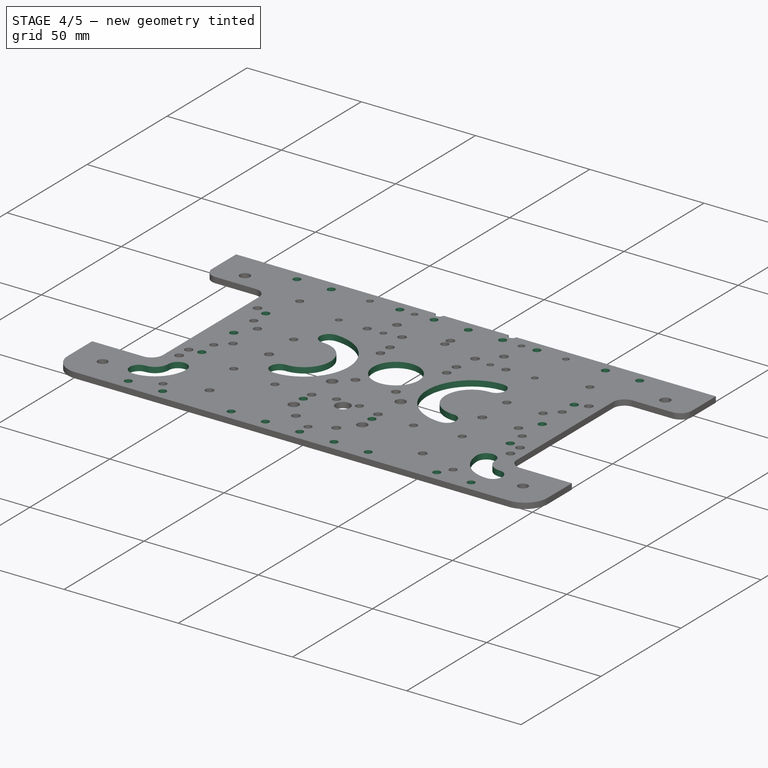
[diagram: stage 4 of 5 — iso view after this stage's code; geometry added in this stage tinted green]
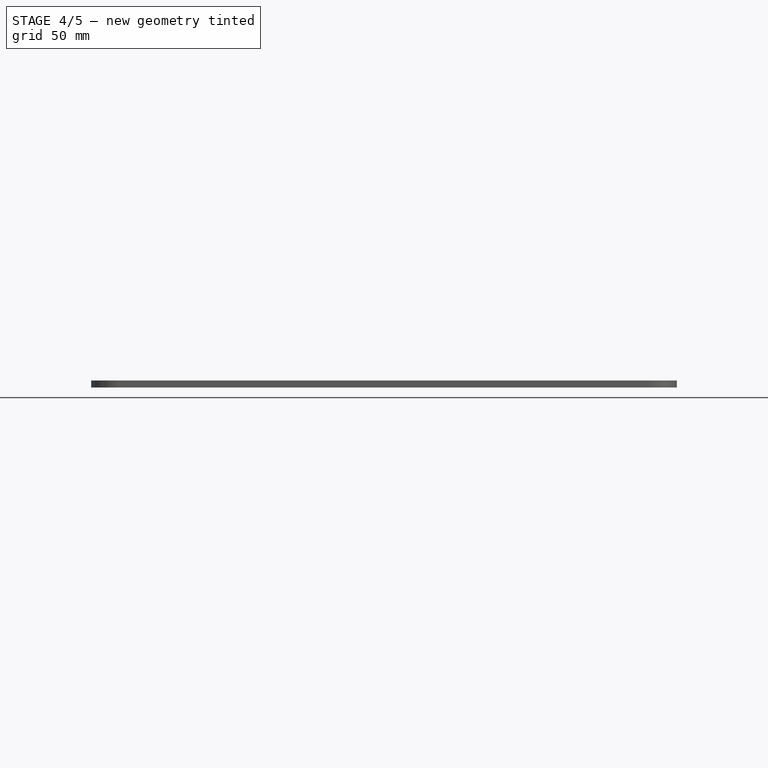
[diagram: stage 4 of 5 — front view after this stage's code; geometry added in this stage tinted green]
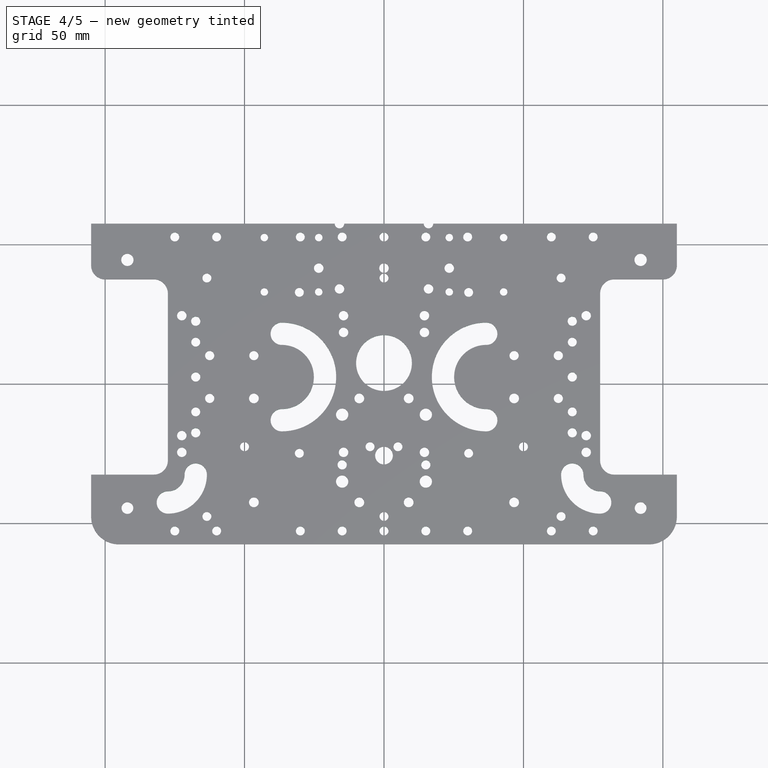
[diagram: stage 4 of 5 — top view after this stage's code; geometry added in this stage tinted green]
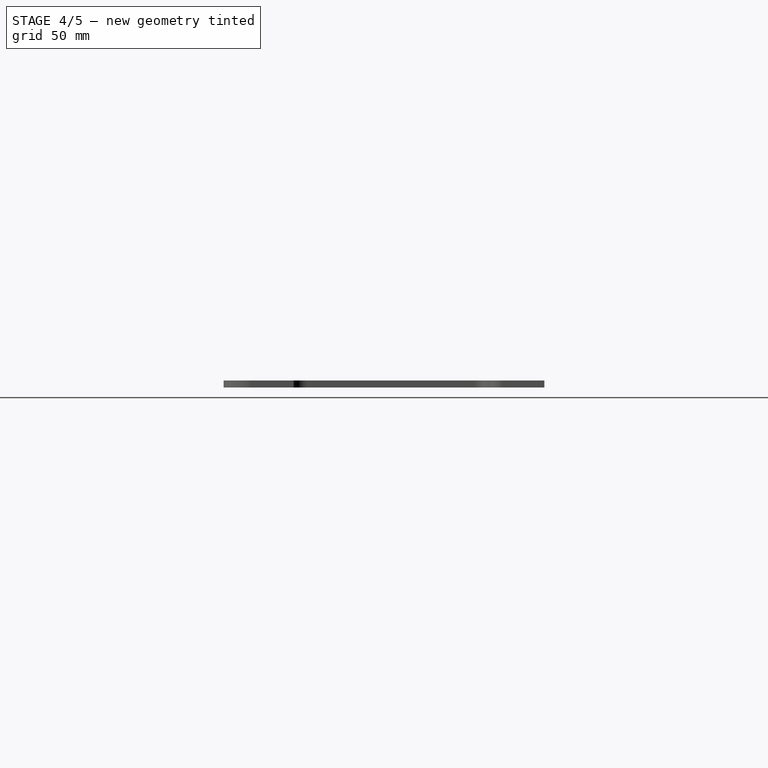
[diagram: stage 4 of 5 — right view after this stage's code; geometry added in this stage tinted green]
FEATURE [Sketcher::SketchObject] Sketch015
  ArcFitTolerance = 1e-06
  AttachmentSupport = -> [Pocket012]
  ExternalGeometry = -> [Pocket012]
  FullyConstrained = true
  MakeInternals = false
  MapMode = 5
  Placement = pos=(0,0,2.5) rot=(0,0,1;0rad)
  sketch-geometry (2):
    g0: Circle CenterX=-15 CenterY=-29 CenterZ=0 NormalX=0 NormalY=0 NormalZ=1 AngleXU=0 Radius=1.65
    g1: Circle CenterX=15 CenterY=-29 CenterZ=0 NormalX=0 NormalY=0 NormalZ=1 AngleXU=0 Radius=1.65
  constraints (5):
    c: Radius(g1) = 1.65
    c: Equal(g0,g1)
    c: Symmetric(g0,g1,g-2)
    c: DistanceX(g0,g1) = 30
    c: DistanceY(g-3,g1) = 28.5
FEATURE [PartDesign::Pocket] Pocket013  label="os30yScrewPocket"
  BaseFeature = -> Pocket012
  Direction = (0,0,-1)
  Length = 4
  Length2 = 5
  Profile = -> Sketch015
  ReferenceAxis = -> Sketch015 [N_Axis]
  Refine = true
  Suppressed = false
  Type = 1
FEATURE [Sketcher::SketchObject] Sketch016
  ArcFitTolerance = 1e-06
  AttachmentSupport = -> [Pocket013]
  FullyConstrained = true
  MakeInternals = false
  MapMode = 5
  Placement = pos=(0,0,2.5) rot=(0,0,1;0rad)
  sketch-geometry (21):
    g0: Circle CenterX=0 CenterY=52.7068 CenterZ=0 NormalX=0 NormalY=0 NormalZ=1 AngleXU=0 Radius=1.6
    g1: Circle CenterX=15 CenterY=52.7068 CenterZ=0 NormalX=0 NormalY=0 NormalZ=1 AngleXU=0 Radius=1.6
    g2: Circle CenterX=30 CenterY=52.7068 CenterZ=0 NormalX=0 NormalY=0 NormalZ=1 AngleXU=0 Radius=1.6
    g3: Circle [constr] CenterX=45 CenterY=52.7068 CenterZ=0 NormalX=0 NormalY=0 NormalZ=1 AngleXU=0 Radius=1.6
    g4: Circle CenterX=60 CenterY=52.7068 CenterZ=0 NormalX=0 NormalY=0 NormalZ=1 AngleXU=0 Radius=1.6
    g5: Circle CenterX=75 CenterY=52.7068 CenterZ=0 NormalX=0 NormalY=0 NormalZ=1 AngleXU=0 Radius=1.6
    g6: LineSegment [constr] StartX=75 StartY=52.7068 StartZ=0 EndX=60 EndY=52.7068 EndZ=0
    g7: LineSegment [constr] StartX=45 StartY=52.7068 StartZ=0 EndX=30 EndY=52.7068 EndZ=0
    g8: LineSegment [constr] StartX=60 StartY=52.7068 StartZ=0 EndX=45 EndY=52.7068 EndZ=0
    g9: LineSegment [constr] StartX=30 StartY=52.7068 StartZ=0 EndX=15 EndY=52.7068 EndZ=0
    g10: LineSegment [constr] StartX=0 StartY=52.7068 StartZ=0 EndX=15 EndY=52.7068 EndZ=0
    g11: Circle CenterX=-15 CenterY=52.7068 CenterZ=0 NormalX=0 NormalY=0 NormalZ=1 AngleXU=0 Radius=1.6
    g12: Circle CenterX=-30 CenterY=52.7068 CenterZ=0 NormalX=0 NormalY=0 NormalZ=1 AngleXU=0 Radius=1.6
    g13: Circle [constr] CenterX=-45 CenterY=52.7068 CenterZ=0 NormalX=0 NormalY=0 NormalZ=1 AngleXU=0 Radius=1.6
    g14: Circle CenterX=-60 CenterY=52.7068 CenterZ=0 NormalX=0 NormalY=0 NormalZ=1 AngleXU=0 Radius=1.6
    g15: Circle CenterX=-75 CenterY=52.7068 CenterZ=0 NormalX=0 NormalY=0 NormalZ=1 AngleXU=0 Radius=1.6
    g16: LineSegment [constr] StartX=-75 StartY=52.7068 StartZ=0 EndX=-60 EndY=52.7068 EndZ=0
    g17: LineSegment [constr] StartX=-45 StartY=52.7068 StartZ=0 EndX=-30 EndY=52.7068 EndZ=0
    g18: LineSegment [constr] StartX=-60 StartY=52.7068 StartZ=0 EndX=-45 EndY=52.7068 EndZ=0
    g19: LineSegment [constr] StartX=-30 StartY=52.7068 StartZ=0 EndX=-15 EndY=52.7068 EndZ=0
    g20: LineSegment [constr] StartX=-15 StartY=52.7068 StartZ=0 EndX=0 EndY=52.7068 EndZ=0
  constraints (49):
    c: PointOnObject(g0,g-2)
    c: Radius(g0) = 1.6
    c: DistanceX(g0,g1) = 15
    c: Equal(g1,g0)
    c: Horizontal(g1,g0)
    c: Equal(g5,g4)
    c: Equal(g4,g2)
    c: Equal(g2,g3)
    c: Horizontal(g5,g4)
    c: Horizontal(g4,g3)
    c: Horizontal(g3,g2)
    c: Equal(g2,g1)
    c: Horizontal(g1,g2)
    c: Coincident(g6,g5)
    c: Coincident(g6,g4)
    c: Coincident(g7,g3)
    c: Coincident(g7,g2)
    c: Coincident(g8,g4)
    c: Coincident(g8,g3)
    c: Coincident(g9,g2)
    c: Coincident(g9,g1)
    c: Coincident(g10,g0)
    c: Coincident(g10,g1)
    c: Equal(g6,g8)
    c: Equal(g8,g7)
    c: Equal(g7,g9)
    c: Equal(g9,g10)
    c: Equal(g15,g14)
    c: Equal(g14,g12)
    c: Equal(g12,g13)
    c: Equal(g12,g11)
    c: Coincident(g16,g15)
    c: Coincident(g16,g14)
    c: Coincident(g17,g13)
    c: Coincident(g17,g12)
    c: Coincident(g18,g14)
    c: Coincident(g18,g13)
    c: Coincident(g19,g12)
    c: Coincident(g19,g11)
    c: Equal(g16,g18)
    c: Equal(g18,g17)
    c: Equal(g17,g19)
    c: Coincident(g20,g11)
    c: Coincident(g20,g0)
    c: Symmetric(g15,g5,g0)
    c: Symmetric(g13,g3,g-2)
    c: Symmetric(g12,g2,g-2)
    c: Symmetric(g11,g1,g-2)
    c: Equal(g13,g0)
FEATURE [PartDesign::Pocket] Pocket014  label="ConnScrewPocket"
  BaseFeature = -> Pocket013
  Direction = (0,0,-1)
  Length = 5
  Length2 = 5
  Profile = -> Sketch016
  ReferenceAxis = -> Sketch016 [N_Axis]
  Refine = true
  Suppressed = false
  Type = 1
FEATURE [PartDesign::Mirrored] Mirrored  label="ConnScrewPocketMirror"
  BaseFeature = -> Pocket014
  MirrorPlane = -> XZ_Plane
  Originals = -> [Pocket014]
  Refine = true
  Suppressed = false
  TransformMode = 0
FEATURE [Sketcher::SketchObject] Sketch017
  ArcFitTolerance = 1e-06
  AttachmentSupport = -> [Mirrored]
  ExternalGeometry = -> [Mirrored]
  FullyConstrained = true
  MakeInternals = false
  MapMode = 5
  Placement = pos=(0,0,2.5) rot=(0,0,1;0rad)
  sketch-geometry (21):
    g0: Circle CenterX=0 CenterY=7.5 CenterZ=0 NormalX=0 NormalY=0 NormalZ=1 AngleXU=0 Radius=10
    g1: ArcOfCircle CenterX=-77.5 CenterY=-32.5 CenterZ=0 NormalX=0 NormalY=0 NormalZ=1 AngleXU=0 Radius=14 StartAngle=4.71239 EndAngle=6.28319
    g2: ArcOfCircle CenterX=-77.5 CenterY=-32.5 CenterZ=0 NormalX=0 NormalY=0 NormalZ=1 AngleXU=0 Radius=6 StartAngle=4.71239 EndAngle=6.28319
    g3: ArcOfCircle CenterX=-67.5 CenterY=-32.5 CenterZ=0 NormalX=0 NormalY=0 NormalZ=1 AngleXU=0 Radius=4 StartAngle=6e-16 EndAngle=3.14159
    g4: ArcOfCircle CenterX=-77.5 CenterY=-42.5 CenterZ=0 NormalX=0 NormalY=0 NormalZ=1 AngleXU=0 Radius=4 StartAngle=1.5708 EndAngle=4.71239
    g5: ArcOfCircle CenterX=77.5 CenterY=-32.5 CenterZ=0 NormalX=0 NormalY=0 NormalZ=1 AngleXU=0 Radius=14 StartAngle=3.14159 EndAngle=4.71239
    g6: ArcOfCircle CenterX=77.5 CenterY=-32.5 CenterZ=0 NormalX=0 NormalY=0 NormalZ=1 AngleXU=0 Radius=6 StartAngle=3.14159 EndAngle=4.71239
    g7: ArcOfCircle CenterX=67.5 CenterY=-32.5 CenterZ=0 NormalX=0 NormalY=0 NormalZ=1 AngleXU=0 Radius=4 StartAngle=1e-16 EndAngle=3.14159
    g8: ArcOfCircle CenterX=77.5 CenterY=-42.5 CenterZ=0 NormalX=0 NormalY=0 NormalZ=1 AngleXU=0 Radius=4 StartAngle=4.71239 EndAngle=7.85398
    g9: ArcOfCircle CenterX=-36.651 CenterY=2.5 CenterZ=0 NormalX=0 NormalY=0 NormalZ=1 AngleXU=0 Radius=19.5 StartAngle=4.71239 EndAngle=7.85398
    g10: ArcOfCircle CenterX=-36.651 CenterY=2.5 CenterZ=0 NormalX=0 NormalY=0 NormalZ=1 AngleXU=0 Radius=11.5 StartAngle=4.71239 EndAngle=7.85398
    g11: ArcOfCircle CenterX=-36.651 CenterY=18 CenterZ=0 NormalX=0 NormalY=0 NormalZ=1 AngleXU=0 Radius=4 StartAngle=1.5708 EndAngle=4.71239
    g12: ArcOfCircle CenterX=-36.651 CenterY=-13 CenterZ=0 NormalX=0 NormalY=0 NormalZ=1 AngleXU=0 Radius=4 StartAngle=1.5708 EndAngle=4.71239
    g13: LineSegment [constr] StartX=-46.651 StartY=-5.1745 StartZ=0 EndX=-46.651 EndY=10.1745 EndZ=0
    g14: GeomPoint [constr] X=-46.651 Y=2.5 Z=0
    g15: ArcOfCircle CenterX=36.651 CenterY=2.5 CenterZ=0 NormalX=0 NormalY=0 NormalZ=1 AngleXU=0 Radius=19.5 StartAngle=1.57079 EndAngle=4.71239
    g16: ArcOfCircle CenterX=36.651 CenterY=2.5 CenterZ=0 NormalX=0 NormalY=0 NormalZ=1 AngleXU=0 Radius=11.5 StartAngle=1.57079 EndAngle=4.71239
    g17: ArcOfCircle CenterX=36.651 CenterY=18 CenterZ=0 NormalX=0 NormalY=0 NormalZ=1 AngleXU=0 Radius=4 StartAngle=4.71239 EndAngle=7.85398
    g18: ArcOfCircle CenterX=36.651 CenterY=-13 CenterZ=0 NormalX=0 NormalY=0 NormalZ=1 AngleXU=0 Radius=4 StartAngle=4.71239 EndAngle=7.85398
    g19: LineSegment [constr] StartX=46.651 StartY=-5.1745 StartZ=0 EndX=46.651 EndY=10.1745 EndZ=0
    g20: GeomPoint [constr] X=46.651 Y=2.5 Z=0
  constraints (49):
    c: PointOnObject(g0,g-2)
    c: DistanceY(g-1,g0) = 7.5
    c: Radius(g0) = 10
    c: Coincident(g2,g1)
    c: Horizontal(g2,g1)
    c: Vertical(g2,g1)
    c: Horizontal(g-3,g2)
    c: Vertical(g-3,g2)
    c: Radius(g3) = 4
    c: Tangent(g4,g2) = 1.5708
    c: Tangent(g4,g1) = -1.5708
    c: Tangent(g3,g2) = 1.5708
    c: Tangent(g3,g1) = -1.5708
    c: Radius(g1) = 14
    c: Coincident(g6,g5)
    c: Radius(g7) = 4
    c: Tangent(g8,g6) = 1.5708
    c: Tangent(g8,g5) = -1.5708
    c: Tangent(g7,g6) = 1.5708
    c: Tangent(g7,g5) = -1.5708
    c: Symmetric(g5,g1,g-2)
    c: Symmetric(g4,g8,g-2)
    c: Horizontal(g5,g1)
    c: Coincident(g10,g9)
    c: Vertical(g10,g9)
    c: Vertical(g9,g10)
    c: Tangent(g12,g10) = 1.5708
    c: Tangent(g12,g9) = -1.5708
    c: Tangent(g11,g10) = 1.5708
    c: Tangent(g11,g9) = -1.5708
    c: Coincident(g13,g-6)
    c: Coincident(g13,g-5)
    c: Symmetric(g13,g13,g14)
    c: Horizontal(g14,g9)
    c: Coincident(g16,g15)
    c: Tangent(g18,g16) = 1.5708
    c: Tangent(g18,g15) = -1.5708
    c: Tangent(g17,g16) = 1.5708
    c: Tangent(g17,g15) = -1.5708
    c: Symmetric(g19,g19,g20)
    c: Symmetric(g17,g11,g-2)
    c: Symmetric(g18,g12,g-2)
    c: Coincident(g-7,g19)
    c: Coincident(g-8,g19)
    c: Equal(g16,g10)
    c: Radius(g11) = 4
    c: Equal(g11,g17)
    c: DistanceX(g14,g9) = 10
    c: DistanceY(g10,g9) = 11.5
FEATURE [PartDesign::Pocket] Pocket015  label="CableTunnelsPocket"
  BaseFeature = -> Mirrored
  Direction = (0,0,-1)
  Length = 5
  Length2 = 5
  Profile = -> Sketch017
  ReferenceAxis = -> Sketch017 [N_Axis]
  Refine = true
  Suppressed = false
  Type = 2
FEATURE [Sketcher::SketchObject] Sketch018
  ArcFitTolerance = 1e-06
  AttachmentSupport = -> [Pocket015]
  ExternalGeometry = -> [Pocket015]
  FullyConstrained = true
  MakeInternals = false
  MapMode = 5
  Placement = pos=(0,0,2.5) rot=(0,0,1;0rad)
  sketch-geometry (7):
    g0: GeomPoint [constr] X=77.5 Y=2.5 Z=0
    g1: Circle CenterX=67.5 CenterY=2.5 CenterZ=0 NormalX=0 NormalY=0 NormalZ=1 AngleXU=0 Radius=1.65
    g2: Circle CenterX=67.5 CenterY=-17.5 CenterZ=0 NormalX=0 NormalY=0 NormalZ=1 AngleXU=0 Radius=1.65
    g3: Circle CenterX=67.5 CenterY=22.5 CenterZ=0 NormalX=0 NormalY=0 NormalZ=1 AngleXU=0 Radius=1.65
    g4: Circle CenterX=-67.5 CenterY=2.5 CenterZ=0 NormalX=0 NormalY=0 NormalZ=1 AngleXU=0 Radius=1.65
    g5: Circle CenterX=-67.5 CenterY=-17.5 CenterZ=0 NormalX=0 NormalY=0 NormalZ=1 AngleXU=0 Radius=1.65
    g6: Circle CenterX=-67.5 CenterY=22.5 CenterZ=0 NormalX=0 NormalY=0 NormalZ=1 AngleXU=0 Radius=1.65
  constraints (15):
    c: Symmetric(g-3,g-3,g0)
    c: Vertical(g1,g3)
    c: Equal(g3,g1)
    c: Equal(g1,g2)
    c: Radius(g3) = 1.65
    c: DistanceY(g2,g1) = 20
    c: Horizontal(g0,g1)
    c: Symmetric(g2,g3,g1)
    c: DistanceX(g1,g0) = 10
    c: Equal(g6,g4)
    c: Equal(g4,g5)
    c: Radius(g6) = 1.65
    c: Symmetric(g5,g6,g4)
    c: Symmetric(g1,g4,g-2)
    c: Symmetric(g6,g3,g-2)
FEATURE [PartDesign::Pocket] Pocket016  label="ServoScrewPocket"
  BaseFeature = -> Pocket015
  Direction = (0,0,-1)
  Length = 5
  Length2 = 5
  Profile = -> Sketch018
  ReferenceAxis = -> Sketch018 [N_Axis]
  Refine = true
  Suppressed = false
  Type = 1
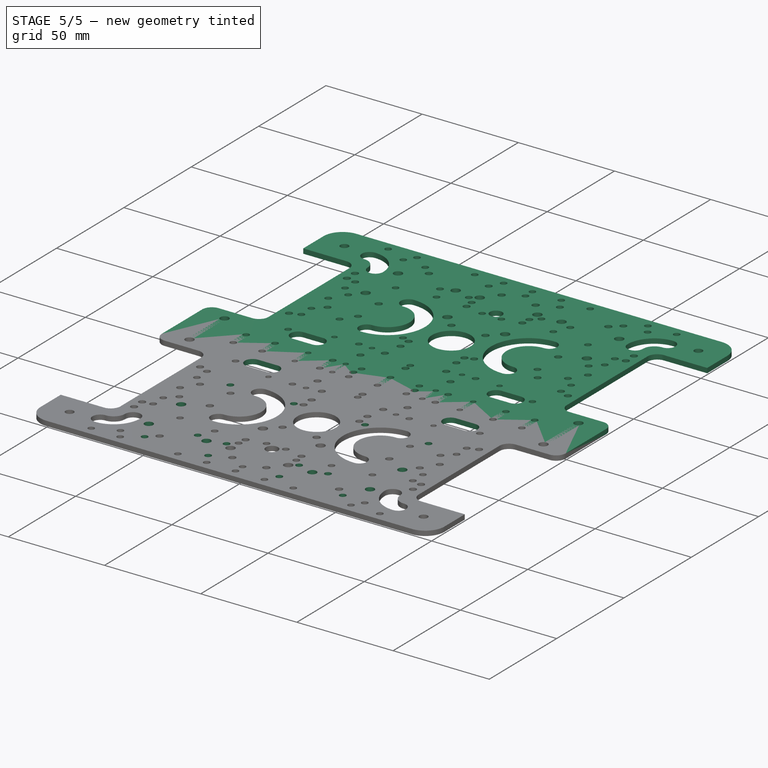
[diagram: stage 5 of 5 — iso view after this stage's code; geometry added in this stage tinted green]
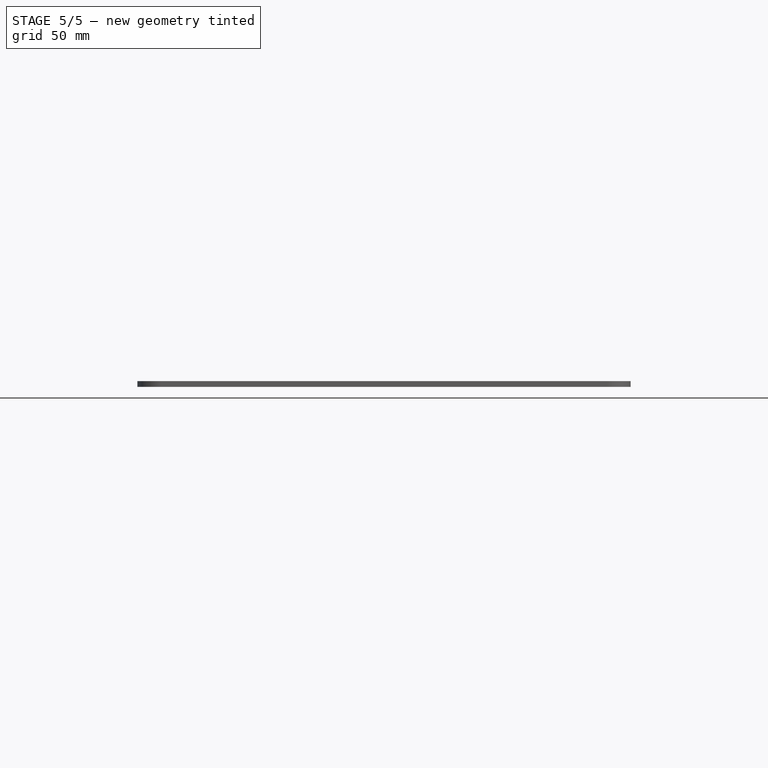
[diagram: stage 5 of 5 — front view after this stage's code; geometry added in this stage tinted green]
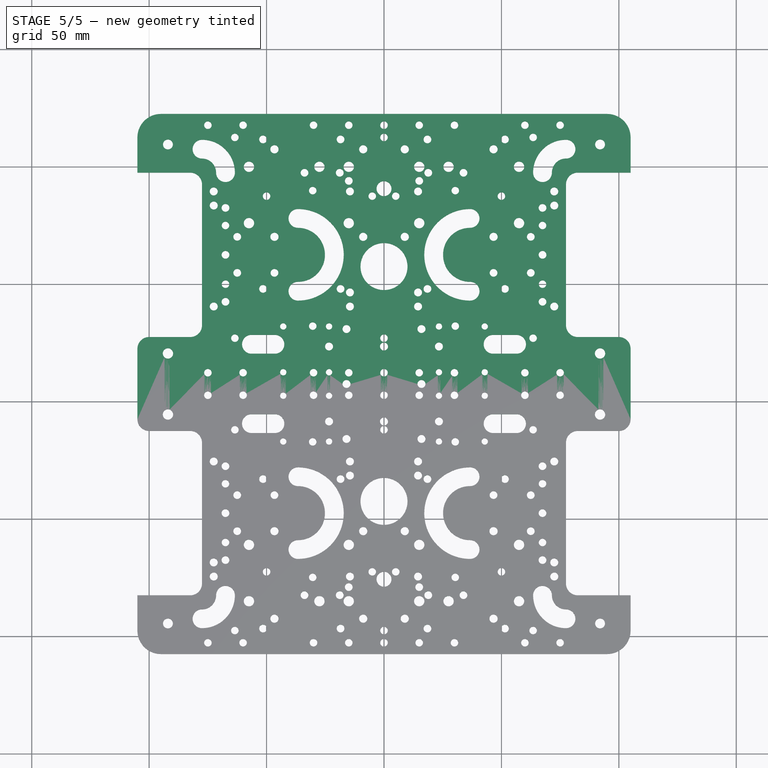
[diagram: stage 5 of 5 — top view after this stage's code; geometry added in this stage tinted green]
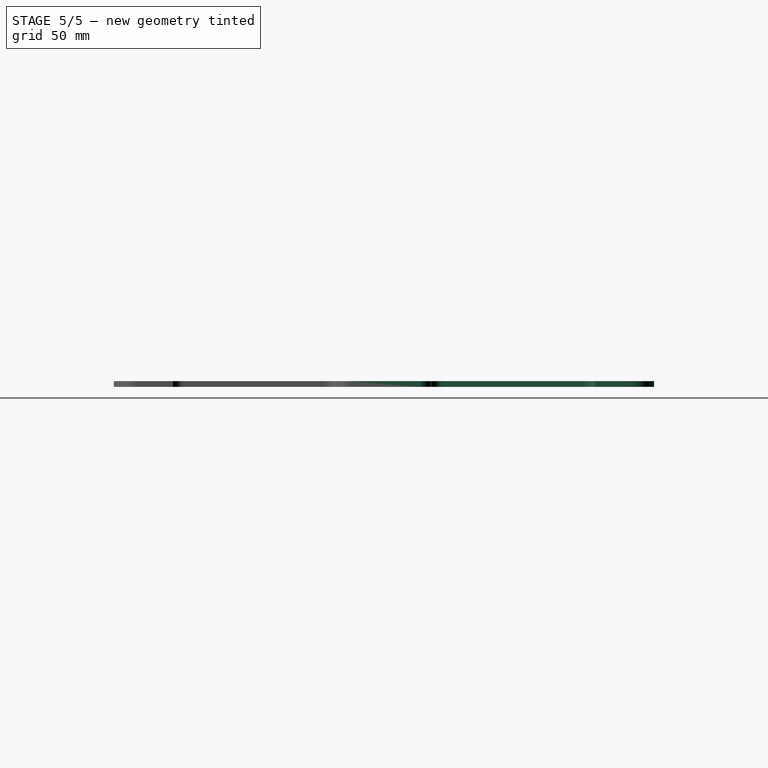
[diagram: stage 5 of 5 — right view after this stage's code; geometry added in this stage tinted green]
FEATURE [Sketcher::SketchObject] Sketch020
  ArcFitTolerance = 1e-06
  AttachmentSupport = -> [Pocket016]
  ExternalGeometry = -> [Pocket016]
  FullyConstrained = true
  MakeInternals = false
  MapMode = 5
  Placement = pos=(0,0,2.5) rot=(0,0,1;0rad)
  sketch-geometry (6):
    g0: Circle CenterX=-33.851 CenterY=-32.4445 CenterZ=0 NormalX=0 NormalY=0 NormalZ=1 AngleXU=0 Radius=1.65
    g1: Circle CenterX=-18.851 CenterY=-32.4445 CenterZ=0 NormalX=0 NormalY=0 NormalZ=1 AngleXU=0 Radius=1.65
    g2: Circle CenterX=33.851 CenterY=-32.4445 CenterZ=0 NormalX=0 NormalY=0 NormalZ=1 AngleXU=0 Radius=1.65
    g3: Circle CenterX=18.851 CenterY=-32.4445 CenterZ=0 NormalX=0 NormalY=0 NormalZ=1 AngleXU=0 Radius=1.65
    g4: LineSegment [constr] StartX=-33.851 StartY=-32.4445 StartZ=0 EndX=-18.851 EndY=-32.4445 EndZ=0
    g5: GeomPoint [constr] X=-26.351 Y=-32.4445 Z=0
  constraints (15):
    c: DistanceX(g0,g1) = 15
    c: Equal(g1,g0)
    c: Radius(g1) = 1.65
    c: Horizontal(g0,g1)
    c: DistanceX(g1,g-3) = 10
    c: Equal(g3,g2)
    c: Radius(g3) = 1.65
    c: Symmetric(g3,g1,g-2)
    c: Symmetric(g2,g0,g-2)
    c: DistanceY(g1,g-1) = 32.4445
    c: Coincident(g4,g0)
    c: Coincident(g4,g1)
    c: Symmetric(g4,g4,g5)
    c: DistanceX(g5,g-1) = 26.351
    c: DistanceY(g-3,g1) = 10
FEATURE [PartDesign::Pocket] Pocket017  label="MaixsenseScrewPocket"
  BaseFeature = -> Pocket016
  Direction = (0,0,-1)
  Length = 5
  Length2 = 5
  Profile = -> Sketch020
  ReferenceAxis = -> Sketch020 [N_Axis]
  Refine = true
  Suppressed = false
  Type = 1
FEATURE [Sketcher::SketchObject] Sketch021
  ArcFitTolerance = 1e-06
  AttachmentSupport = -> [Pocket017]
  FullyConstrained = true
  MakeInternals = false
  MapMode = 5
  Placement = pos=(0,0,2.5) rot=(0,0,1;0rad)
  sketch-geometry (18):
    g0: Circle CenterX=18.5 CenterY=17 CenterZ=0 NormalX=0 NormalY=0 NormalZ=1 AngleXU=0 Radius=1.65
    g1: Circle CenterX=51.5 CenterY=17 CenterZ=0 NormalX=0 NormalY=0 NormalZ=1 AngleXU=0 Radius=1.65
    g2: Circle CenterX=18.5 CenterY=-46.65 CenterZ=0 NormalX=0 NormalY=0 NormalZ=1 AngleXU=0 Radius=1.65
    g3: Circle CenterX=51.5 CenterY=-46.65 CenterZ=0 NormalX=0 NormalY=0 NormalZ=1 AngleXU=0 Radius=1.65
    g4: LineSegment [constr] StartX=18.5 StartY=-46.65 StartZ=0 EndX=51.5 EndY=-46.65 EndZ=0
    g5: LineSegment [constr] StartX=51.5 StartY=-46.65 StartZ=0 EndX=51.5 EndY=17 EndZ=0
    g6: LineSegment [constr] StartX=51.5 StartY=17 StartZ=0 EndX=18.5 EndY=17 EndZ=0
    g7: LineSegment [constr] StartX=18.5 StartY=17 StartZ=0 EndX=18.5 EndY=-46.65 EndZ=0
    g8: GeomPoint [constr] X=35 Y=-14.825 Z=0
    g9: Circle CenterX=-18.5 CenterY=17 CenterZ=0 NormalX=0 NormalY=0 NormalZ=1 AngleXU=0 Radius=1.65
    g10: Circle CenterX=-51.5 CenterY=17 CenterZ=0 NormalX=0 NormalY=0 NormalZ=1 AngleXU=0 Radius=1.65
    g11: Circle CenterX=-18.5 CenterY=-46.65 CenterZ=0 NormalX=0 NormalY=0 NormalZ=1 AngleXU=0 Radius=1.65
    g12: Circle CenterX=-51.5 CenterY=-46.65 CenterZ=0 NormalX=0 NormalY=0 NormalZ=1 AngleXU=0 Radius=1.65
    g13: LineSegment [constr] StartX=-18.5 StartY=-46.65 StartZ=0 EndX=-51.5 EndY=-46.65 EndZ=0
    g14: LineSegment [constr] StartX=-51.5 StartY=-46.65 StartZ=0 EndX=-51.5 EndY=17 EndZ=0
    g15: LineSegment [constr] StartX=-51.5 StartY=17 StartZ=0 EndX=-18.5 EndY=17 EndZ=0
    g16: LineSegment [constr] StartX=-18.5 StartY=17 StartZ=0 EndX=-18.5 EndY=-46.65 EndZ=0
    g17: GeomPoint [constr] X=-35 Y=-14.825 Z=0
  constraints (42):
    c: Coincident(g4,g2)
    c: Coincident(g4,g3)
    c: Horizontal(g4)
    c: Coincident(g4,g5)
    c: Coincident(g5,g1)
    c: Coincident(g5,g6)
    c: Coincident(g6,g0)
    c: Coincident(g6,g7)
    c: Coincident(g7,g4)
    c: Vertical(g7)
    c: Vertical(g5)
    c: Horizontal(g6)
    c: Equal(g1,g0)
    c: Equal(g0,g2)
    c: Equal(g2,g3)
    c: Radius(g3) = 1.65
    c: DistanceX(g4,g4) = 33
    c: DistanceY(g5,g5) = 63.65
    c: DistanceY(g-1,g0) = 17
    c: DistanceX(g-1,g0) = 18.5
    c: Symmetric(g0,g3,g8)
    c: DistanceY(g8) = -14.825
    c: DistanceX(g8) = 35
    c: Coincident(g13,g11)
    c: Coincident(g13,g12)
    c: Horizontal(g13)
    c: Coincident(g13,g14)
    c: Coincident(g14,g10)
    c: Coincident(g14,g15)
    c: Coincident(g15,g9)
    c: Coincident(g15,g16)
    c: Coincident(g16,g13)
    c: Vertical(g16)
    c: Vertical(g14)
    c: Horizontal(g15)
    c: Equal(g10,g9)
    c: Equal(g9,g11)
    c: Equal(g11,g12)
    c: Radius(g12) = 1.65
    c: Symmetric(g9,g12,g17)
    c: Symmetric(g10,g1,g-2)
    c: Symmetric(g2,g11,g-2)
FEATURE [PartDesign::Pocket] Pocket018  label="GMovScrewPocket"
  BaseFeature = -> Pocket017
  Direction = (0,0,-1)
  Length = 5
  Length2 = 5
  Profile = -> Sketch021
  ReferenceAxis = -> Sketch021 [N_Axis]
  Refine = true
  Suppressed = false
  Type = 1
FEATURE [Sketcher::SketchObject] Sketch022
  ArcFitTolerance = 1e-06
  AttachmentSupport = -> [Pocket018]
  ExternalGeometry = -> [Sketch007]
  FullyConstrained = true
  MakeInternals = false
  MapMode = 5
  Placement = pos=(0,0,2.5) rot=(0,0,1;0rad)
  sketch-geometry (23):
    g0: Circle CenterX=-57.5 CenterY=-11 CenterZ=0 NormalX=0 NormalY=0 NormalZ=1 AngleXU=0 Radius=2.2
    g1: Circle CenterX=-57.5 CenterY=-35 CenterZ=0 NormalX=0 NormalY=0 NormalZ=1 AngleXU=0 Radius=2.2
    g2: LineSegment [constr] StartX=-15 StartY=-35 StartZ=0 EndX=15 EndY=-35 EndZ=0
    g3: LineSegment [constr] StartX=15 StartY=-35 StartZ=0 EndX=15 EndY=-11 EndZ=0
    g4: LineSegment [constr] StartX=15 StartY=-11 StartZ=0 EndX=-15 EndY=-11 EndZ=0
    g5: LineSegment [constr] StartX=-15 StartY=-11 StartZ=0 EndX=-15 EndY=-35 EndZ=0
    g6: GeomPoint [constr] X=-4e-16 Y=-23 Z=0
    g7: Circle CenterX=-27.5 CenterY=-11 CenterZ=0 NormalX=0 NormalY=0 NormalZ=1 AngleXU=0 Radius=2.2
    g8: Circle CenterX=-27.5 CenterY=-35 CenterZ=0 NormalX=0 NormalY=0 NormalZ=1 AngleXU=0 Radius=2.2
    g9: LineSegment [constr] StartX=-57.5 StartY=-11 StartZ=0 EndX=-57.5 EndY=-35 EndZ=0
    g10: LineSegment [constr] StartX=-57.5 StartY=-35 StartZ=0 EndX=-27.5 EndY=-35 EndZ=0
    g11: LineSegment [constr] StartX=-27.5 StartY=-35 StartZ=0 EndX=-27.5 EndY=-11 EndZ=0
    g12: LineSegment [constr] StartX=-27.5 StartY=-11 StartZ=0 EndX=-57.5 EndY=-11 EndZ=0
    g13: GeomPoint [constr] X=-42.5 Y=-23 Z=0
    g14: Circle CenterX=57.5 CenterY=-11 CenterZ=0 NormalX=0 NormalY=0 NormalZ=1 AngleXU=0 Radius=2.2
    g15: Circle CenterX=57.5 CenterY=-35 CenterZ=0 NormalX=0 NormalY=0 NormalZ=1 AngleXU=0 Radius=2.2
    g16: Circle CenterX=27.5 CenterY=-11 CenterZ=0 NormalX=0 NormalY=0 NormalZ=1 AngleXU=0 Radius=2.2
    g17: Circle CenterX=27.5 CenterY=-35 CenterZ=0 NormalX=0 NormalY=0 NormalZ=1 AngleXU=0 Radius=2.2
    g18: LineSegment [constr] StartX=57.5 StartY=-11 StartZ=0 EndX=57.5 EndY=-35 EndZ=0
    g19: LineSegment [constr] StartX=57.5 StartY=-35 StartZ=0 EndX=27.5 EndY=-35 EndZ=0
    g20: LineSegment [constr] StartX=27.5 StartY=-35 StartZ=0 EndX=27.5 EndY=-11 EndZ=0
    g21: LineSegment [constr] StartX=27.5 StartY=-11 StartZ=0 EndX=57.5 EndY=-11 EndZ=0
    g22: GeomPoint [constr] X=42.5 Y=-23 Z=0
  constraints (51):
    c: Coincident(g2,g3)
    c: Coincident(g3,g4)
    c: Coincident(g4,g5)
    c: Coincident(g5,g2)
    c: Horizontal(g2)
    c: Horizontal(g4)
    c: Vertical(g3)
    c: Vertical(g5)
    c: Symmetric(g4,g2,g6)
    c: Coincident(g3,g-4)
    c: Coincident(g-3,g2)
    c: Horizontal(g2,g1)
    c: Horizontal(g0,g4)
    c: Equal(g8,g1)
    c: Equal(g1,g0)
    c: Equal(g0,g7)
    c: Equal(g-3,g7)
    c: Horizontal(g8,g1)
    c: Horizontal(g0,g7)
    c: Coincident(g9,g10)
    c: Coincident(g10,g11)
    c: Coincident(g11,g12)
    c: Coincident(g12,g9)
    c: Vertical(g9)
    c: Vertical(g11)
    c: Symmetric(g11,g9,g13)
    c: Coincident(g10,g8)
    c: Coincident(g11,g7)
    c: Coincident(g0,g9)
    c: Coincident(g1,g9)
    c: Equal(g10,g2)
    c: DistanceX(g8,g2) = 12.5
    c: Equal(g17,g15)
    c: Equal(g15,g14)
    c: Equal(g14,g16)
    c: Coincident(g18,g19)
    c: Coincident(g19,g20)
    c: Coincident(g20,g21)
    c: Coincident(g21,g18)
    c: Vertical(g18)
    c: Vertical(g20)
    c: Symmetric(g20,g18,g22)
    c: Coincident(g19,g17)
    c: Coincident(g20,g16)
    c: Coincident(g14,g18)
    c: Coincident(g15,g18)
    c: Symmetric(g17,g8,g-2)
    c: Symmetric(g0,g14,g-2)
    c: Equal(g17,g8)
    c: Horizontal(g21)
    c: Horizontal(g19)
FEATURE [PartDesign::Pocket] Pocket019  label="AdditionalCasterPocker"
  BaseFeature = -> Pocket018
  Direction = (0,0,-1)
  Length = 1
  Length2 = 5
  Profile = -> Sketch022
  ReferenceAxis = -> Sketch022 [N_Axis]
  Refine = true
  Suppressed = false
  Type = 1
FEATURE [Sketcher::SketchObject] Sketch023
  ArcFitTolerance = 1e-06
  AttachmentSupport = -> [Pocket019]
  ExternalGeometry = -> [Pocket019]
  FullyConstrained = true
  MakeInternals = false
  MapMode = 5
  Placement = pos=(0,0,2.5) rot=(0,0,1;0rad)
  sketch-geometry (14):
    g0: ArcOfCircle CenterX=-56.45 CenterY=40.6034 CenterZ=0 NormalX=0 NormalY=0 NormalZ=1 AngleXU=0 Radius=4 StartAngle=1.5708 EndAngle=4.71239
    g1: ArcOfCircle CenterX=-46.45 CenterY=40.6034 CenterZ=0 NormalX=0 NormalY=0 NormalZ=1 AngleXU=0 Radius=4 StartAngle=4.71239 EndAngle=7.85398
    g2: LineSegment StartX=-56.45 StartY=44.6034 StartZ=0 EndX=-46.45 EndY=44.6034 EndZ=0
    g3: LineSegment StartX=-56.45 StartY=36.6034 StartZ=0 EndX=-46.45 EndY=36.6034 EndZ=0
    g4: LineSegment [constr] StartX=-60 StartY=52.7068 StartZ=0 EndX=-42.9 EndY=52.5 EndZ=0
    g5: LineSegment [constr] StartX=-56.45 StartY=40.6034 StartZ=0 EndX=-46.45 EndY=40.6034 EndZ=0
    g6: LineSegment [constr] StartX=-51.45 StartY=40.6034 StartZ=0 EndX=-51.45 EndY=52.6034 EndZ=0
    g7: ArcOfCircle CenterX=56.45 CenterY=40.6034 CenterZ=0 NormalX=0 NormalY=0 NormalZ=1 AngleXU=0 Radius=4 StartAngle=4.71239 EndAngle=7.85398
    g8: ArcOfCircle CenterX=46.45 CenterY=40.6034 CenterZ=0 NormalX=0 NormalY=0 NormalZ=1 AngleXU=0 Radius=4 StartAngle=1.5708 EndAngle=4.71239
    g9: LineSegment StartX=56.45 StartY=44.6034 StartZ=0 EndX=46.45 EndY=44.6034 EndZ=0
    g10: LineSegment StartX=56.45 StartY=36.6034 StartZ=0 EndX=46.45 EndY=36.6034 EndZ=0
    g11: LineSegment [constr] StartX=60 StartY=52.5 StartZ=0 EndX=42.9 EndY=52.5 EndZ=0
    g12: LineSegment [constr] StartX=56.45 StartY=40.6034 StartZ=0 EndX=46.45 EndY=40.6034 EndZ=0
    g13: LineSegment [constr] StartX=51.45 StartY=40.6034 StartZ=0 EndX=51.45 EndY=52.5 EndZ=0
  constraints (31):
    c: Tangent(g0,g2) = 1.5708
    c: Tangent(g0,g3) = -1.5708
    c: Tangent(g1,g2) = 1.5708
    c: Tangent(g1,g3) = -1.5708
    c: Equal(g0,g1)
    c: Horizontal(g2)
    c: DistanceX(g0,g1) = 10
    c: Radius(g1) = 4
    c: Coincident(g4,g-3)
    c: Coincident(g4,g-4)
    c: Coincident(g5,g0)
    c: Coincident(g5,g1)
    c: Symmetric(g5,g5,g6)
    c: Symmetric(g4,g4,g6)
    c: Vertical(g6)
    c: DistanceY(g6,g6) = 12
    c: Tangent(g7,g9) = -1.5708
    c: Tangent(g7,g10) = 1.5708
    c: Tangent(g8,g9) = -1.5708
    c: Tangent(g8,g10) = 1.5708
    c: Equal(g7,g8)
    c: Radius(g8) = 4
    c: Coincident(g12,g7)
    c: Coincident(g12,g8)
    c: Symmetric(g12,g12,g13)
    c: Symmetric(g11,g11,g13)
    c: Vertical(g13)
    c: Symmetric(g11,g4,g-2)
    c: Symmetric(g8,g1,g-2)
    c: Symmetric(g7,g0,g-2)
    c: Horizontal(g11)
FEATURE [PartDesign::Pocket] Pocket020  label="TouchSensorCAblePocket"
  BaseFeature = -> Pocket019
  Direction = (0,0,-1)
  Length = 5
  Length2 = 5
  Profile = -> Sketch023
  ReferenceAxis = -> Sketch023 [N_Axis]
  Refine = true
  Suppressed = false
  Type = 0
FEATURE [PartDesign::Mirrored] Mirrored001
  BaseFeature = -> Pocket020
  MirrorPlane = -> Pocket020 [Face9]
  Refine = true
  Suppressed = false
  TransformMode = 1
FEATURE [PartDesign::Body] Body  label="com_plate_template"
  AllowCompound = false
  Group = -> [Sketch,Pad,Fillet,Sketch001,Pocket,Sketch002,Pocket001,Fillet001,Sketch003,Pocket002,Sketch004,Pocket003,Sketch005,Pocket004,Sketch006,Pocket005,Sketch007,Pocket006,Sketch008,Pocket007,Sketch009,Pocket008,Sketch010,Pocket009,Sketch011,Pocket010,Sketch012,Pocket011,Sketch013,Pocket012,Sketch015,Pocket013,Sketch016,Pocket014,Mirrored,Sketch017,Pocket015,Sketch018,Pocket016,Sketch020,Pocket017,+7 more]
  Origin = -> Origin
  Tip = -> Mirrored001
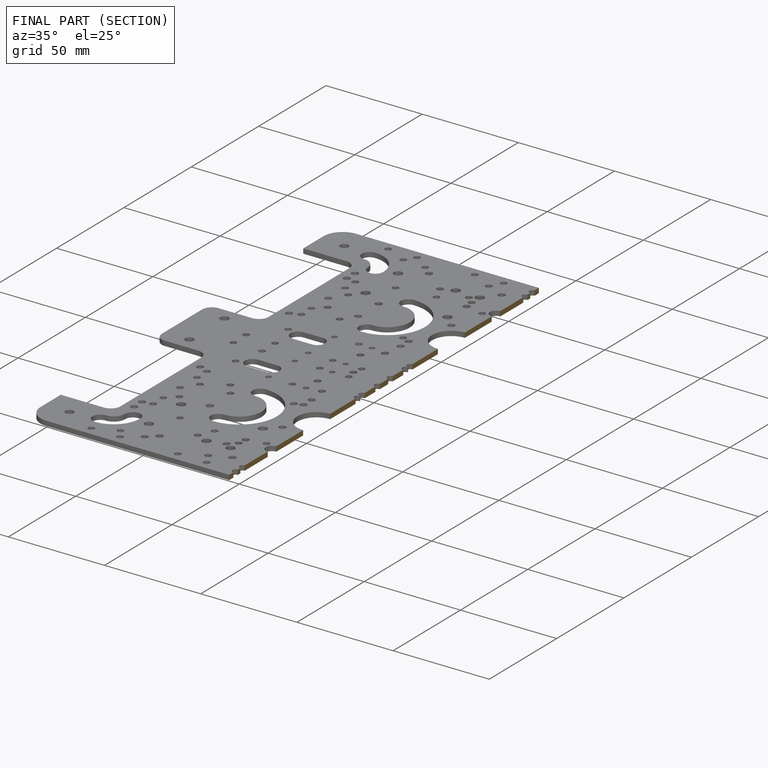
[diagram: finished part — half-section view (interior)]
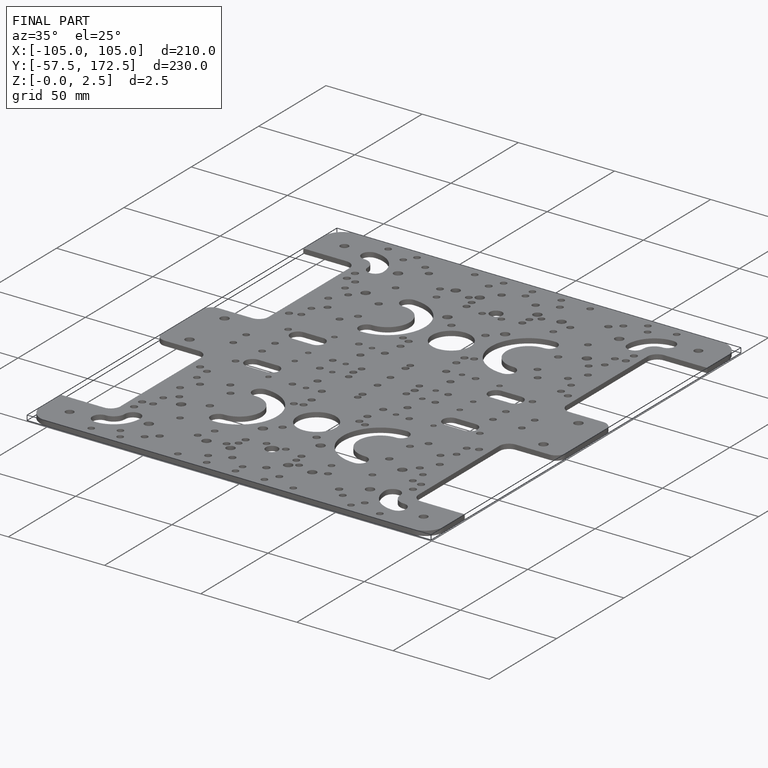
[diagram: finished part — iso view with bounding-box wireframe]
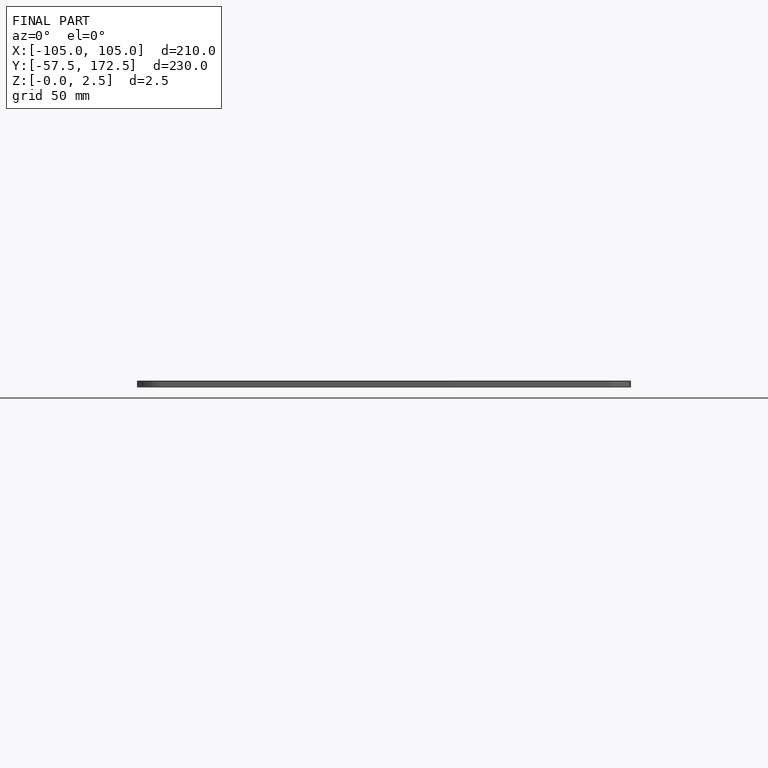
[diagram: finished part — front view with bounding-box wireframe]
